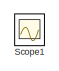
[diagram: root canvas - part 1/2, top left region]
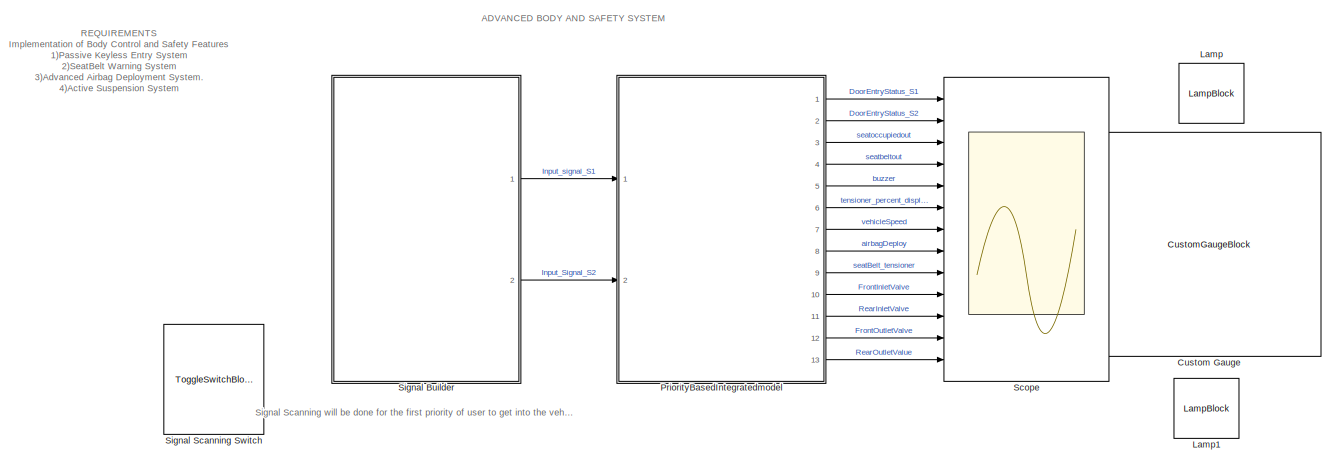
[diagram: root canvas - part 2/2, full width, bottom band]
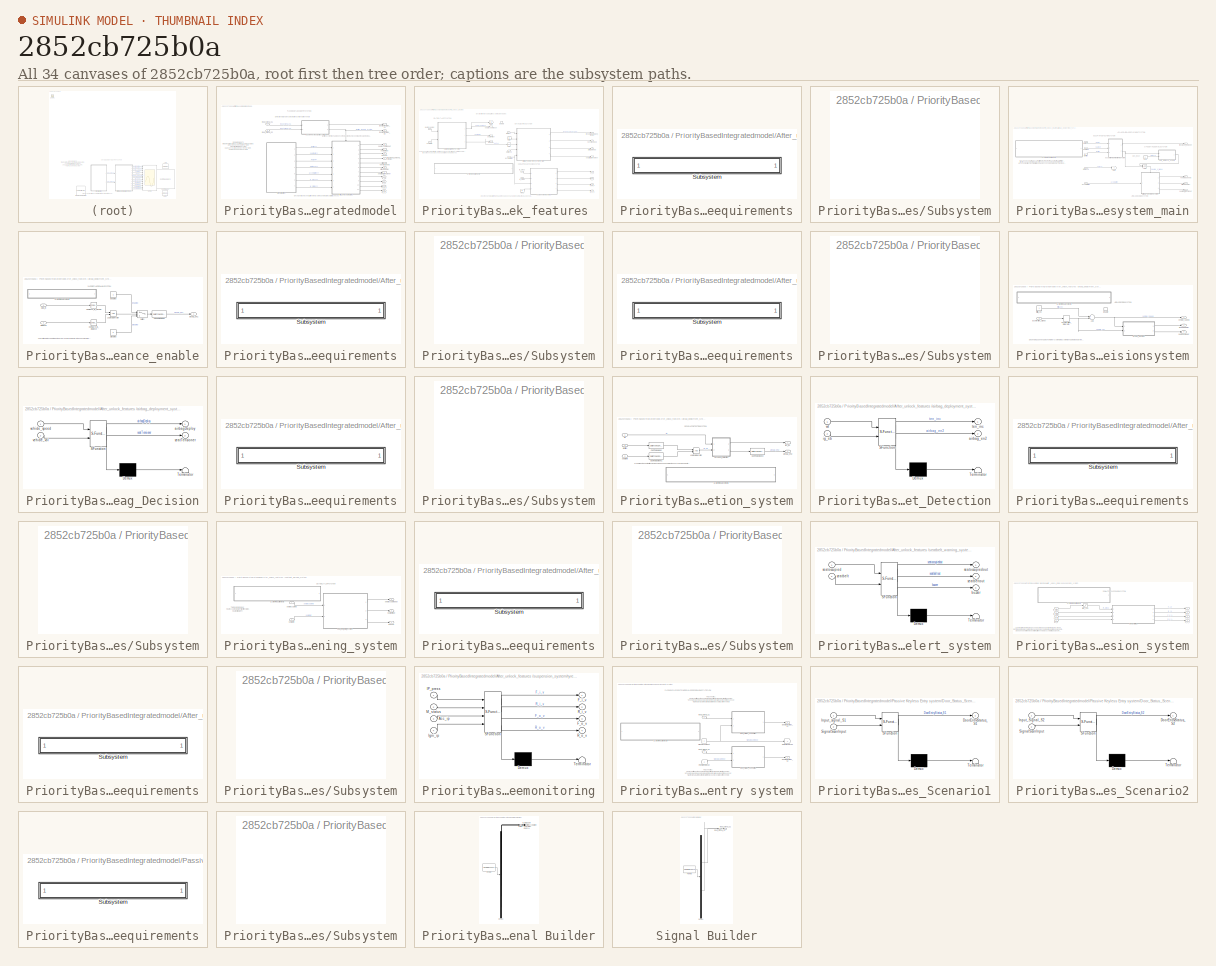
[diagram: thumbnail index - all 34 canvases of the model, root first then tree order]
MODEL slx_2852cb725b0a
KIND model
CONFIG AbsTol = auto
CONFIG EnableMultiTasking = off
CONFIG FixedStep = 0.1
CONFIG MaxStep = auto
CONFIG MinStep = auto
CONFIG RelTol = 1e-3
CONFIG SampleTimeConstraint = Unconstrained
CONFIG Solver = FixedStepDiscrete
CONFIG SolverName = FixedStepDiscrete
CONFIG StartTime = 0.0
CONFIG StopTime = 100
BLOCK [CustomGaugeBlock] Custom Gauge
  BackgroundImage = data:image/svg+xml;base64,PD94bWwgdmVyc2lvbj0iMS4wIiBlbmNvZGluZz0iVVRGLTgiIHN0YW5kYWxvbmU9Im5vIj8+CjwhLS0gR2VuZXJhdG9yOiBBZG9iZSBJbGx1c3RyYXRvciAxOS4yLjEsIFNWRyBFeHBvcnQgUGx1Zy1JbiAuIFNWRyBWZXJzaW9uOiA2LjAwIEJ1aWxkIDApICAtLT4KCjxzdmcKICAgeG1sbnM6ZGM9Imh0dHA6Ly9wdXJsLm9yZy9kYy9lbGVtZW50cy8xLjEvIgogICB4bWxuczpjYz0iaHR0cDovL2NyZWF0aXZlY29tbW9ucy5vcmcvbnMjIgogICB4bWxuczpyZGY9Imh0dHA6Ly93d3cudzMub3JnLz...<+9686ch>
  GaugeArcDefined = true
  GaugeArcRadius = 0.13057749678689773
  GaugeArcRatio = 0.8333333333333
  GaugeArcRotation = 240.5385250290321
  GaugeArcStrokeWidth = 0.03818590063686888
  GaugeArcTransparency = 0
  GaugeMax = 35
  GaugeTickColor = #faf5c8
  GaugeTrackHeight = 0.1
  GaugeTrackLeft = 0.35
  GaugeTrackRotation = 0
  GaugeTrackTop = 0.35
  GaugeTrackWidth = 0.3
  IsLinearGauge = false
  LabelPosition = Bottom
  NeedleHeight = 0.1115133381335879
  NeedleImage = data:image/svg+xml;base64,PD94bWwgdmVyc2lvbj0iMS4wIiBlbmNvZGluZz0idXRmLTgiPz4KPCEtLSBHZW5lcmF0b3I6IEFkb2JlIElsbHVzdHJhdG9yIDE5LjIuMSwgU1ZHIEV4cG9ydCBQbHVnLUluIC4gU1ZHIFZlcnNpb246IDYuMDAgQnVpbGQgMCkgIC0tPgo8c3ZnIHZlcnNpb249IjEuMSIgeG1sbnM9Imh0dHA6Ly93d3cudzMub3JnLzIwMDAvc3ZnIiB4bWxuczp4bGluaz0iaHR0cDovL3d3dy53My5vcmcvMTk5OS94bGluayIgeD0iMHB4IiB5PSIwcHgiCgkgdmlld0JveD0iMCAwIDIwMCA1MCIgc3R5bGU9ImVuYW...<+9966ch>
  NeedleInitialRotation = -59.94322499147643
  NeedleWidth = 0.18370999021718049
  NeedleXPos = 0.3848836610088748
  NeedleYPos = 0.4819046056238141
  ScaleColorsJSON = []
  ValueArcColor = #1759b0
  fixedAspectRatio = on
BLOCK [LampBlock] Lamp
  LabelPosition = Bottom
BLOCK [LampBlock] Lamp1
  LabelPosition = Bottom
BLOCK [SubSystem] PriorityBasedIntegratedmodel
  Ports = [2, 13]
  RequestExecContextInheritance = off
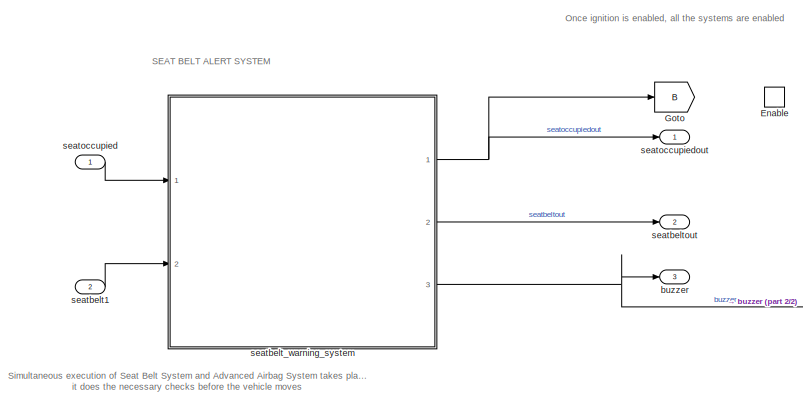
[diagram: PriorityBasedIntegratedmodel/After_unlock_features  - part 1/2, top left region]
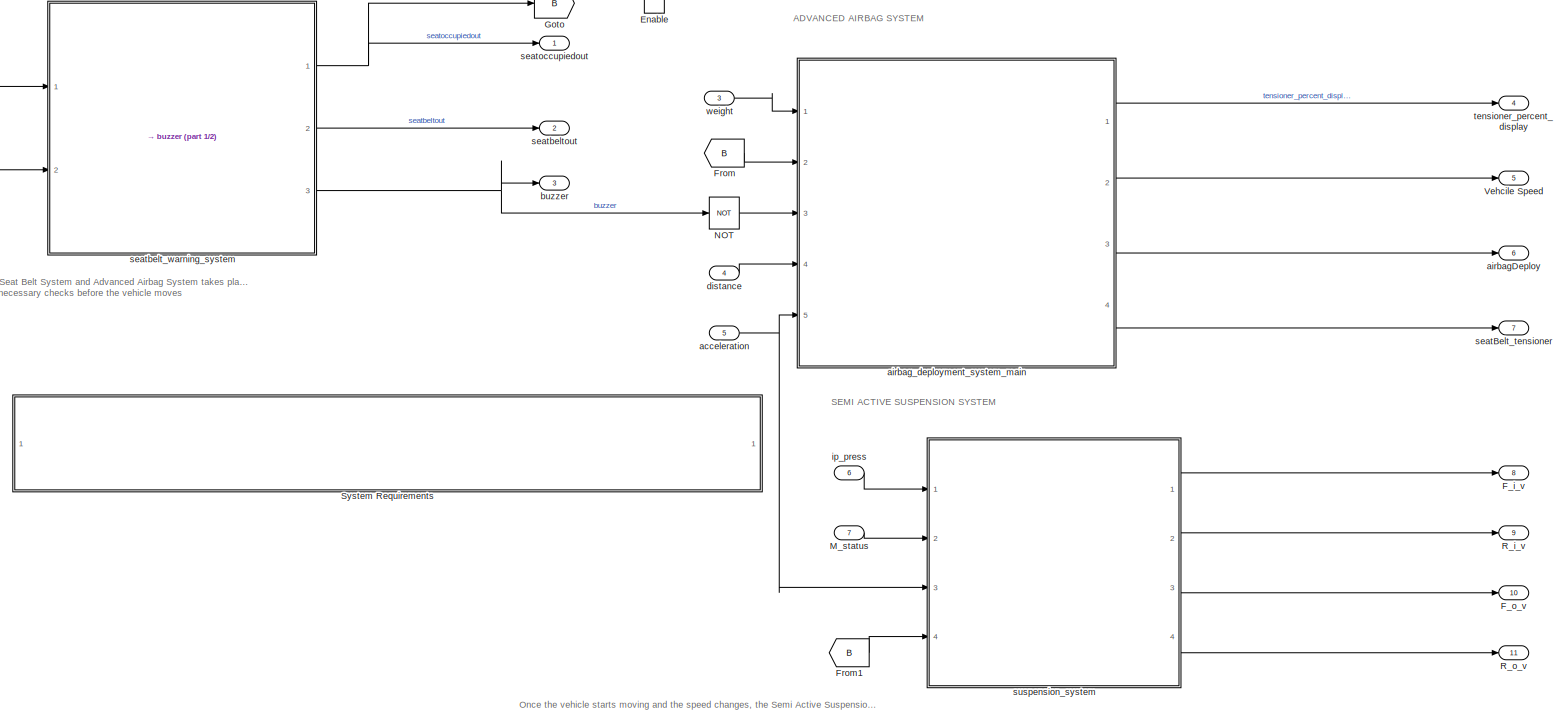
[diagram: PriorityBasedIntegratedmodel/After_unlock_features  - part 2/2, most of the canvas]
BLOCK [SubSystem] PriorityBasedIntegratedmodel/After_unlock_features 
  Ports = [7, 11, 1]
  RequestExecContextInheritance = off
  TreatAsAtomicUnit = on
BLOCK [EnablePort] PriorityBasedIntegratedmodel/After_unlock_features /Enable
  Ports = []
BLOCK [Outport] PriorityBasedIntegratedmodel/After_unlock_features /F_i_v
  IconDisplay = Port number
  Port = 8
BLOCK [Outport] PriorityBasedIntegratedmodel/After_unlock_features /F_o_v
  IconDisplay = Port number
  Port = 10
BLOCK [From] PriorityBasedIntegratedmodel/After_unlock_features /From
  GotoTag = B
BLOCK [From] PriorityBasedIntegratedmodel/After_unlock_features /From1
  GotoTag = B
BLOCK [Goto] PriorityBasedIntegratedmodel/After_unlock_features /Goto
  GotoTag = B
BLOCK [Inport] PriorityBasedIntegratedmodel/After_unlock_features /M_status
  IconDisplay = Port number
  Port = 7
BLOCK [Logic] PriorityBasedIntegratedmodel/After_unlock_features /NOT
  AllPortsSameDT = off
  IconShape = distinctive
  Operator = NOT
  OutDataTypeStr = boolean
  Ports = [1, 1]
BLOCK [Outport] PriorityBasedIntegratedmodel/After_unlock_features /R_i_v
  IconDisplay = Port number
  Port = 9
BLOCK [Outport] PriorityBasedIntegratedmodel/After_unlock_features /R_o_v
  IconDisplay = Port number
  Port = 11
BLOCK [SubSystem] PriorityBasedIntegratedmodel/After_unlock_features /System Requirements
  CopyFcn = rmidispblock('create',gcbh)
  DeleteFcn = rmidispblock('delete',gcbh)
  LoadFcn = rmidispblock('load',gcbh)
  ModelCloseFcn = rmidispblock('close',gcbh)
  MoveFcn = rmidispblock('move',gcbh)
  OpenFcn = rmidispblock('open',gcbh)
  Ports = []
  PostSaveFcn = rmidispblock('open',gcbh)
  PreSaveFcn = rmidispblock('close',gcbh)
  RequestExecContextInheritance = off
BLOCK [SubSystem] PriorityBasedIntegratedmodel/After_unlock_features /System Requirements/Subsystem
  OpenFcn = rmidispblock('openReq',gcbh);
  Ports = []
  RequestExecContextInheritance = off
BLOCK [Outport] PriorityBasedIntegratedmodel/After_unlock_features /Vehcile Speed
  IconDisplay = Port number
  Port = 5
BLOCK [Inport] PriorityBasedIntegratedmodel/After_unlock_features /acceleration
  IconDisplay = Port number
  Port = 5
BLOCK [Outport] PriorityBasedIntegratedmodel/After_unlock_features /airbagDeploy
  IconDisplay = Port number
  Port = 6
BLOCK [SubSystem] PriorityBasedIntegratedmodel/After_unlock_features /airbag_deployment_system_main
  Ports = [5, 4]
  RequestExecContextInheritance = off
BLOCK [Logic] PriorityBasedIntegratedmodel/After_unlock_features /airbag_deployment_system_main/AND
  AllPortsSameDT = off
  IconShape = distinctive
  OutDataTypeStr = boolean
  Ports = [2, 1]
BLOCK [From] PriorityBasedIntegratedmodel/After_unlock_features /airbag_deployment_system_main/From
BLOCK [Goto] PriorityBasedIntegratedmodel/After_unlock_features /airbag_deployment_system_main/Goto
BLOCK [SubSystem] PriorityBasedIntegratedmodel/After_unlock_features /airbag_deployment_system_main/Safe_distance_enable
  Ports = [2, 1]
  RequestExecContextInheritance = off
BLOCK [DataTypeConversion] PriorityBasedIntegratedmodel/After_unlock_features /airbag_deployment_system_main/Safe_distance_enable/Cast To Boolean
  OutDataTypeStr = boolean
  RndMeth = Floor
  SaturateOnIntegerOverflow = off
BLOCK [Reference] PriorityBasedIntegratedmodel/After_unlock_features /airbag_deployment_system_main/Safe_distance_enable/Compare_to_airbag  REF=simulink/Logic and Bit
Operations/Compare
To Constant
  Ports = [1, 1]
  SourceBlock = simulink/Logic and Bit\nOperations/Compare\nTo Constant
  SourceProductBaseCode = SL
  SourceProductName = Simulink
  SourceType = Compare To Constant
BLOCK [Reference] PriorityBasedIntegratedmodel/After_unlock_features /airbag_deployment_system_main/Safe_distance_enable/Compare_to_distance  REF=simulink/Logic and Bit
Operations/Compare
To Constant
  Ports = [1, 1]
  SourceBlock = simulink/Logic and Bit\nOperations/Compare\nTo Constant
  SourceProductBaseCode = SL
  SourceProductName = Simulink
  SourceType = Compare To Constant
BLOCK [Constant] PriorityBasedIntegratedmodel/After_unlock_features /airbag_deployment_system_main/Safe_distance_enable/Disabled
  Value = 0
BLOCK [Constant] PriorityBasedIntegratedmodel/After_unlock_features /airbag_deployment_system_main/Safe_distance_enable/Enabled
BLOCK [Logic] PriorityBasedIntegratedmodel/After_unlock_features /airbag_deployment_system_main/Safe_distance_enable/Logical Operator
  AllPortsSameDT = off
  OutDataTypeStr = boolean
  Ports = [2, 1]
BLOCK [Inport] PriorityBasedIntegratedmodel/After_unlock_features /airbag_deployment_system_main/Safe_distance_enable/ODS_in
  IconDisplay = Port number
BLOCK [Switch] PriorityBasedIntegratedmodel/After_unlock_features /airbag_deployment_system_main/Safe_distance_enable/Switch
  Criteria = u2 ~= 0
  InputSameDT = off
  SaturateOnIntegerOverflow = off
BLOCK [SubSystem] PriorityBasedIntegratedmodel/After_unlock_features /airbag_deployment_system_main/Safe_distance_enable/System Requirements
  CopyFcn = rmidispblock('create',gcbh)
  DeleteFcn = rmidispblock('delete',gcbh)
  LoadFcn = rmidispblock('load',gcbh)
  ModelCloseFcn = rmidispblock('close',gcbh)
  MoveFcn = rmidispblock('move',gcbh)
  OpenFcn = rmidispblock('open',gcbh)
  Ports = []
  PostSaveFcn = rmidispblock('open',gcbh)
  PreSaveFcn = rmidispblock('close',gcbh)
  RequestExecContextInheritance = off
BLOCK [SubSystem] PriorityBasedIntegratedmodel/After_unlock_features /airbag_deployment_system_main/Safe_distance_enable/System Requirements/Subsystem
  OpenFcn = rmidispblock('openReq',gcbh);
  Ports = []
  RequestExecContextInheritance = off
BLOCK [Outport] PriorityBasedIntegratedmodel/After_unlock_features /airbag_deployment_system_main/Safe_distance_enable/airbag_en1
  IconDisplay = Port number
  OutDataTypeStr = boolean
BLOCK [Inport] PriorityBasedIntegratedmodel/After_unlock_features /airbag_deployment_system_main/Safe_distance_enable/distance
  IconDisplay = Port number
  Port = 2
BLOCK [SubSystem] PriorityBasedIntegratedmodel/After_unlock_features /airbag_deployment_system_main/System Requirements
  CopyFcn = rmidispblock('create',gcbh)
  DeleteFcn = rmidispblock('delete',gcbh)
  LoadFcn = rmidispblock('load',gcbh)
  ModelCloseFcn = rmidispblock('close',gcbh)
  MoveFcn = rmidispblock('move',gcbh)
  OpenFcn = rmidispblock('open',gcbh)
  Ports = []
  PostSaveFcn = rmidispblock('open',gcbh)
  PreSaveFcn = rmidispblock('close',gcbh)
  RequestExecContextInheritance = off
BLOCK [SubSystem] PriorityBasedIntegratedmodel/After_unlock_features /airbag_deployment_system_main/System Requirements/Subsystem
  OpenFcn = rmidispblock('openReq',gcbh);
  Ports = []
  RequestExecContextInheritance = off
BLOCK [Inport] PriorityBasedIntegratedmodel/After_unlock_features /airbag_deployment_system_main/acceleration
  IconDisplay = Port number
  Port = 5
BLOCK [SubSystem] PriorityBasedIntegratedmodel/After_unlock_features /airbag_deployment_system_main/airbag_decisionsystem
  Ports = [1, 3, 1]
  RequestExecContextInheritance = off
BLOCK [Sum] PriorityBasedIntegratedmodel/After_unlock_features /airbag_deployment_system_main/airbag_decisionsystem/Add
  InputSameDT = off
  OutDataTypeStr = Inherit: Inherit via internal rule
  Ports = [2, 1]
  SaturateOnIntegerOverflow = off
BLOCK [SubSystem] PriorityBasedIntegratedmodel/After_unlock_features /airbag_deployment_system_main/airbag_decisionsystem/Airbag_Decision
  ErrorFcn = Stateflow.Translate.translate
  PermitHierarchicalResolution = ExplicitOnly
  Ports = [2, 2]
  RequestExecContextInheritance = off
  SFBlockType = Chart
  TreatAsAtomicUnit = on
BLOCK [Demux] PriorityBasedIntegratedmodel/After_unlock_features /airbag_deployment_system_main/airbag_decisionsystem/Airbag_Decision/ Demux 
  DisplayOption = bar
  Outputs = 1
  Ports = [1, 1]
BLOCK [S-Function] PriorityBasedIntegratedmodel/After_unlock_features /airbag_deployment_system_main/airbag_decisionsystem/Airbag_Decision/ SFunction 
  EnableBusSupport = on
  FunctionName = sf_sfun
  PortCounts = [2 3]
  Ports = [2, 3]
  SFcnIsStateOwnerBlock = off
  SFunctionDeploymentMode = off
  Tag = Stateflow S-Function 1
BLOCK [Terminator] PriorityBasedIntegratedmodel/After_unlock_features /airbag_deployment_system_main/airbag_decisionsystem/Airbag_Decision/ Terminator 
BLOCK [Outport] PriorityBasedIntegratedmodel/After_unlock_features /airbag_deployment_system_main/airbag_decisionsystem/Airbag_Decision/airbagDeploy
  IconDisplay = Port number
BLOCK [Outport] PriorityBasedIntegratedmodel/After_unlock_features /airbag_deployment_system_main/airbag_decisionsystem/Airbag_Decision/seatTensioner
  IconDisplay = Port number
  Port = 2
BLOCK [Inport] PriorityBasedIntegratedmodel/After_unlock_features /airbag_deployment_system_main/airbag_decisionsystem/Airbag_Decision/vehicle_speed
  IconDisplay = Port number
BLOCK [Inport] PriorityBasedIntegratedmodel/After_unlock_features /airbag_deployment_system_main/airbag_decisionsystem/Airbag_Decision/vehicle_vol
  IconDisplay = Port number
  Port = 2
BLOCK [EnablePort] PriorityBasedIntegratedmodel/After_unlock_features /airbag_deployment_system_main/airbag_decisionsystem/Enable
  Ports = []
BLOCK [SubSystem] PriorityBasedIntegratedmodel/After_unlock_features /airbag_deployment_system_main/airbag_decisionsystem/System Requirements
  CopyFcn = rmidispblock('create',gcbh)
  DeleteFcn = rmidispblock('delete',gcbh)
  LoadFcn = rmidispblock('load',gcbh)
  ModelCloseFcn = rmidispblock('close',gcbh)
  MoveFcn = rmidispblock('move',gcbh)
  OpenFcn = rmidispblock('open',gcbh)
  Ports = []
  PostSaveFcn = rmidispblock('open',gcbh)
  PreSaveFcn = rmidispblock('close',gcbh)
  RequestExecContextInheritance = off
BLOCK [SubSystem] PriorityBasedIntegratedmodel/After_unlock_features /airbag_deployment_system_main/airbag_decisionsystem/System Requirements/Subsystem
  OpenFcn = rmidispblock('openReq',gcbh);
  Ports = []
  RequestExecContextInheritance = off
BLOCK [DiscreteIntegrator] PriorityBasedIntegratedmodel/After_unlock_features /airbag_deployment_system_main/airbag_decisionsystem/acceleration_integrator
  ICPrevOutput = DiscIntNeverNeededParam
  ICPrevScaledInput = DiscIntNeverNeededParam
  InitialConditionSetting = Auto
  Ports = [1, 1]
  SampleTime = -1
BLOCK [Inport] PriorityBasedIntegratedmodel/After_unlock_features /airbag_deployment_system_main/airbag_decisionsystem/accelertion_signal
  IconDisplay = Port number
BLOCK [Outport] PriorityBasedIntegratedmodel/After_unlock_features /airbag_deployment_system_main/airbag_decisionsystem/airbagdeploy
  IconDisplay = Port number
  Port = 2
BLOCK [Constant] PriorityBasedIntegratedmodel/After_unlock_features /airbag_deployment_system_main/airbag_decisionsystem/initial_vol
BLOCK [Outport] PriorityBasedIntegratedmodel/After_unlock_features /airbag_deployment_system_main/airbag_decisionsystem/seatTensioner
  IconDisplay = Port number
  Port = 3
BLOCK [Outport] PriorityBasedIntegratedmodel/After_unlock_features /airbag_deployment_system_main/airbag_decisionsystem/vehicle_speed
  IconDisplay = Port number
BLOCK [Outport] PriorityBasedIntegratedmodel/After_unlock_features /airbag_deployment_system_main/airbagdeploy
  IconDisplay = Port number
  Port = 3
BLOCK [Inport] PriorityBasedIntegratedmodel/After_unlock_features /airbag_deployment_system_main/distance
  IconDisplay = Port number
  Port = 4
BLOCK [Inport] PriorityBasedIntegratedmodel/After_unlock_features /airbag_deployment_system_main/ignition
  IconDisplay = Port number
  Port = 2
BLOCK [SubSystem] PriorityBasedIntegratedmodel/After_unlock_features /airbag_deployment_system_main/occuption_detection_system
  Ports = [3, 2]
  RequestExecContextInheritance = off
BLOCK [DataTypeConversion] PriorityBasedIntegratedmodel/After_unlock_features /airbag_deployment_system_main/occuption_detection_system/Cast To Boolean
  OutDataTypeStr = boolean
  RndMeth = Floor
  SaturateOnIntegerOverflow = off
BLOCK [DataTypeConversion] PriorityBasedIntegratedmodel/After_unlock_features /airbag_deployment_system_main/occuption_detection_system/Cast To Boolean1
  OutDataTypeStr = boolean
  RndMeth = Floor
  SaturateOnIntegerOverflow = off
BLOCK [DataTypeConversion] PriorityBasedIntegratedmodel/After_unlock_features /airbag_deployment_system_main/occuption_detection_system/Cast To Boolean2
  OutDataTypeStr = boolean
  RndMeth = Floor
  SaturateOnIntegerOverflow = off
BLOCK [Logic] PriorityBasedIntegratedmodel/After_unlock_features /airbag_deployment_system_main/occuption_detection_system/Logical Operator
  AllPortsSameDT = off
  OutDataTypeStr = boolean
  Ports = [2, 1]
BLOCK [SubSystem] PriorityBasedIntegratedmodel/After_unlock_features /airbag_deployment_system_main/occuption_detection_system/Occupant_Detection
  ErrorFcn = Stateflow.Translate.translate
  PermitHierarchicalResolution = ExplicitOnly
  Ports = [2, 2]
  RequestExecContextInheritance = off
  SFBlockType = Chart
  TreatAsAtomicUnit = on
BLOCK [Demux] PriorityBasedIntegratedmodel/After_unlock_features /airbag_deployment_system_main/occuption_detection_system/Occupant_Detection/ Demux 
  DisplayOption = bar
  Outputs = 1
  Ports = [1, 1]
BLOCK [S-Function] PriorityBasedIntegratedmodel/After_unlock_features /airbag_deployment_system_main/occuption_detection_system/Occupant_Detection/ SFunction 
  EnableBusSupport = on
  FunctionName = sf_sfun
  PortCounts = [2 3]
  Ports = [2, 3]
  SFcnIsStateOwnerBlock = off
  SFunctionDeploymentMode = off
  Tag = Stateflow S-Function 2
BLOCK [Terminator] PriorityBasedIntegratedmodel/After_unlock_features /airbag_deployment_system_main/occuption_detection_system/Occupant_Detection/ Terminator 
BLOCK [Outport] PriorityBasedIntegratedmodel/After_unlock_features /airbag_deployment_system_main/occuption_detection_system/Occupant_Detection/airbag_en2
  IconDisplay = Port number
  Port = 2
BLOCK [Inport] PriorityBasedIntegratedmodel/After_unlock_features /airbag_deployment_system_main/occuption_detection_system/Occupant_Detection/ig_sb
  IconDisplay = Port number
  Port = 2
BLOCK [Outport] PriorityBasedIntegratedmodel/After_unlock_features /airbag_deployment_system_main/occuption_detection_system/Occupant_Detection/ten_inc
  IconDisplay = Port number
BLOCK [Inport] PriorityBasedIntegratedmodel/After_unlock_features /airbag_deployment_system_main/occuption_detection_system/Occupant_Detection/wt
  IconDisplay = Port number
BLOCK [SubSystem] PriorityBasedIntegratedmodel/After_unlock_features /airbag_deployment_system_main/occuption_detection_system/System Requirements
  CopyFcn = rmidispblock('create',gcbh)
  DeleteFcn = rmidispblock('delete',gcbh)
  LoadFcn = rmidispblock('load',gcbh)
  ModelCloseFcn = rmidispblock('close',gcbh)
  MoveFcn = rmidispblock('move',gcbh)
  OpenFcn = rmidispblock('open',gcbh)
  Ports = []
  PostSaveFcn = rmidispblock('open',gcbh)
  PreSaveFcn = rmidispblock('close',gcbh)
  RequestExecContextInheritance = off
BLOCK [SubSystem] PriorityBasedIntegratedmodel/After_unlock_features /airbag_deployment_system_main/occuption_detection_system/System Requirements/Subsystem
  OpenFcn = rmidispblock('openReq',gcbh);
  Ports = []
  RequestExecContextInheritance = off
BLOCK [Outport] PriorityBasedIntegratedmodel/After_unlock_features /airbag_deployment_system_main/occuption_detection_system/airbag_en2
  IconDisplay = Port number
  Port = 2
BLOCK [Inport] PriorityBasedIntegratedmodel/After_unlock_features /airbag_deployment_system_main/occuption_detection_system/ignition
  IconDisplay = Port number
  Port = 3
BLOCK [Inport] PriorityBasedIntegratedmodel/After_unlock_features /airbag_deployment_system_main/occuption_detection_system/seatbelt
  IconDisplay = Port number
  Port = 2
BLOCK [Outport] PriorityBasedIntegratedmodel/After_unlock_features /airbag_deployment_system_main/occuption_detection_system/ten_inc
  IconDisplay = Port number
BLOCK [Inport] PriorityBasedIntegratedmodel/After_unlock_features /airbag_deployment_system_main/occuption_detection_system/wt
  IconDisplay = Port number
BLOCK [Inport] PriorityBasedIntegratedmodel/After_unlock_features /airbag_deployment_system_main/seatbelt
  IconDisplay = Port number
  Port = 3
BLOCK [Outport] PriorityBasedIntegratedmodel/After_unlock_features /airbag_deployment_system_main/seatbelt_tensioner
  IconDisplay = Port number
  Port = 4
BLOCK [Outport] PriorityBasedIntegratedmodel/After_unlock_features /airbag_deployment_system_main/tensioner_percent
  IconDisplay = Port number
BLOCK [Outport] PriorityBasedIntegratedmodel/After_unlock_features /airbag_deployment_system_main/vehicle_speed
  IconDisplay = Port number
  Port = 2
BLOCK [Inport] PriorityBasedIntegratedmodel/After_unlock_features /airbag_deployment_system_main/weight
  IconDisplay = Port number
BLOCK [Outport] PriorityBasedIntegratedmodel/After_unlock_features /buzzer
  IconDisplay = Port number
  Port = 3
BLOCK [Inport] PriorityBasedIntegratedmodel/After_unlock_features /distance
  IconDisplay = Port number
  Port = 4
BLOCK [Inport] PriorityBasedIntegratedmodel/After_unlock_features /ip_press
  IconDisplay = Port number
  Port = 6
BLOCK [Outport] PriorityBasedIntegratedmodel/After_unlock_features /seatBelt_tensioner
  IconDisplay = Port number
  Port = 7
BLOCK [Inport] PriorityBasedIntegratedmodel/After_unlock_features /seatbelt1
  IconDisplay = Port number
  Port = 2
BLOCK [SubSystem] PriorityBasedIntegratedmodel/After_unlock_features /seatbelt_warning_system
  Ports = [2, 3]
  RequestExecContextInheritance = off
BLOCK [SubSystem] PriorityBasedIntegratedmodel/After_unlock_features /seatbelt_warning_system/System Requirements
  CopyFcn = rmidispblock('create',gcbh)
  DeleteFcn = rmidispblock('delete',gcbh)
  LoadFcn = rmidispblock('load',gcbh)
  ModelCloseFcn = rmidispblock('close',gcbh)
  MoveFcn = rmidispblock('move',gcbh)
  OpenFcn = rmidispblock('open',gcbh)
  Ports = []
  PostSaveFcn = rmidispblock('open',gcbh)
  PreSaveFcn = rmidispblock('close',gcbh)
  RequestExecContextInheritance = off
BLOCK [SubSystem] PriorityBasedIntegratedmodel/After_unlock_features /seatbelt_warning_system/System Requirements/Subsystem
  OpenFcn = rmidispblock('openReq',gcbh);
  Ports = []
  RequestExecContextInheritance = off
BLOCK [Outport] PriorityBasedIntegratedmodel/After_unlock_features /seatbelt_warning_system/buzzer
  IconDisplay = Port number
  Port = 3
BLOCK [SubSystem] PriorityBasedIntegratedmodel/After_unlock_features /seatbelt_warning_system/seat_belt_alert_system
  ErrorFcn = Stateflow.Translate.translate
  PermitHierarchicalResolution = ExplicitOnly
  Ports = [2, 3]
  RequestExecContextInheritance = off
  SFBlockType = Chart
  TreatAsAtomicUnit = on
BLOCK [Demux] PriorityBasedIntegratedmodel/After_unlock_features /seatbelt_warning_system/seat_belt_alert_system/ Demux 
  DisplayOption = bar
  Outputs = 1
  Ports = [1, 1]
BLOCK [S-Function] PriorityBasedIntegratedmodel/After_unlock_features /seatbelt_warning_system/seat_belt_alert_system/ SFunction 
  EnableBusSupport = on
  FunctionName = sf_sfun
  PortCounts = [2 4]
  Ports = [2, 4]
  SFcnIsStateOwnerBlock = off
  SFunctionDeploymentMode = off
  Tag = Stateflow S-Function 3
BLOCK [Terminator] PriorityBasedIntegratedmodel/After_unlock_features /seatbelt_warning_system/seat_belt_alert_system/ Terminator 
BLOCK [Outport] PriorityBasedIntegratedmodel/After_unlock_features /seatbelt_warning_system/seat_belt_alert_system/buzzer
  IconDisplay = Port number
  Port = 3
BLOCK [Inport] PriorityBasedIntegratedmodel/After_unlock_features /seatbelt_warning_system/seat_belt_alert_system/seatbelt
  IconDisplay = Port number
  Port = 2
BLOCK [Outport] PriorityBasedIntegratedmodel/After_unlock_features /seatbelt_warning_system/seat_belt_alert_system/seatbeltout
  IconDisplay = Port number
  Port = 2
BLOCK [Inport] PriorityBasedIntegratedmodel/After_unlock_features /seatbelt_warning_system/seat_belt_alert_system/seatoccupied
  IconDisplay = Port number
BLOCK [Outport] PriorityBasedIntegratedmodel/After_unlock_features /seatbelt_warning_system/seat_belt_alert_system/seatoccupiedout
  IconDisplay = Port number
BLOCK [Inport] PriorityBasedIntegratedmodel/After_unlock_features /seatbelt_warning_system/seatbelt
  IconDisplay = Port number
  Port = 2
BLOCK [Outport] PriorityBasedIntegratedmodel/After_unlock_features /seatbelt_warning_system/seatbeltout
  IconDisplay = Port number
  Port = 2
BLOCK [Inport] PriorityBasedIntegratedmodel/After_unlock_features /seatbelt_warning_system/seatoccupied
  IconDisplay = Port number
BLOCK [Outport] PriorityBasedIntegratedmodel/After_unlock_features /seatbelt_warning_system/seatoccupiedout
  IconDisplay = Port number
BLOCK [Outport] PriorityBasedIntegratedmodel/After_unlock_features /seatbeltout
  IconDisplay = Port number
  Port = 2
BLOCK [Inport] PriorityBasedIntegratedmodel/After_unlock_features /seatoccupied
  IconDisplay = Port number
BLOCK [Outport] PriorityBasedIntegratedmodel/After_unlock_features /seatoccupiedout
  IconDisplay = Port number
BLOCK [SubSystem] PriorityBasedIntegratedmodel/After_unlock_features /suspension_system
  Ports = [4, 4]
  RequestExecContextInheritance = off
BLOCK [Inport] PriorityBasedIntegratedmodel/After_unlock_features /suspension_system/Acc_ip
  IconDisplay = Port number
  Port = 3
BLOCK [Outport] PriorityBasedIntegratedmodel/After_unlock_features /suspension_system/F_i_v
  IconDisplay = Port number
BLOCK [Outport] PriorityBasedIntegratedmodel/After_unlock_features /suspension_system/F_o_v
  IconDisplay = Port number
  Port = 3
BLOCK [Inport] PriorityBasedIntegratedmodel/After_unlock_features /suspension_system/IP_press
  IconDisplay = Port number
BLOCK [Inport] PriorityBasedIntegratedmodel/After_unlock_features /suspension_system/Igni_IP
  IconDisplay = Port number
  Port = 4
BLOCK [Inport] PriorityBasedIntegratedmodel/After_unlock_features /suspension_system/M_status
  IconDisplay = Port number
  Port = 2
BLOCK [Outport] PriorityBasedIntegratedmodel/After_unlock_features /suspension_system/R_i_v
  IconDisplay = Port number
  Port = 2
BLOCK [Outport] PriorityBasedIntegratedmodel/After_unlock_features /suspension_system/R_o_v
  IconDisplay = Port number
  Port = 4
BLOCK [SubSystem] PriorityBasedIntegratedmodel/After_unlock_features /suspension_system/System Requirements
  CopyFcn = rmidispblock('create',gcbh)
  DeleteFcn = rmidispblock('delete',gcbh)
  LoadFcn = rmidispblock('load',gcbh)
  ModelCloseFcn = rmidispblock('close',gcbh)
  MoveFcn = rmidispblock('move',gcbh)
  OpenFcn = rmidispblock('open',gcbh)
  Ports = []
  PostSaveFcn = rmidispblock('open',gcbh)
  PreSaveFcn = rmidispblock('close',gcbh)
  RequestExecContextInheritance = off
BLOCK [SubSystem] PriorityBasedIntegratedmodel/After_unlock_features /suspension_system/System Requirements/Subsystem
  OpenFcn = rmidispblock('openReq',gcbh);
  Ports = []
  RequestExecContextInheritance = off
BLOCK [Saturate] PriorityBasedIntegratedmodel/After_unlock_features /suspension_system/lim0_100
  AttributesFormatString = %<LowerLimit>=0\n%<UpperLimit>=120
  InputPortMap = u0
  LowerLimit = 0
  Ports = [1, 1]
  UpperLimit = 120
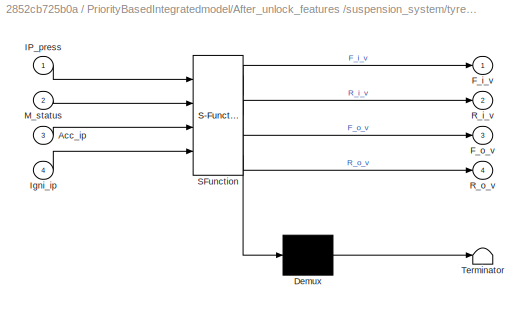
BLOCK [SubSystem] PriorityBasedIntegratedmodel/After_unlock_features /suspension_system/tyremonitoring
  ErrorFcn = Stateflow.Translate.translate
  PermitHierarchicalResolution = ExplicitOnly
  Ports = [4, 4]
  RequestExecContextInheritance = off
  SFBlockType = Chart
  TreatAsAtomicUnit = on
BLOCK [Demux] PriorityBasedIntegratedmodel/After_unlock_features /suspension_system/tyremonitoring/ Demux 
  DisplayOption = bar
  Outputs = 1
  Ports = [1, 1]
BLOCK [S-Function] PriorityBasedIntegratedmodel/After_unlock_features /suspension_system/tyremonitoring/ SFunction 
  EnableBusSupport = on
  FunctionName = sf_sfun
  PortCounts = [4 5]
  Ports = [4, 5]
  SFcnIsStateOwnerBlock = off
  SFunctionDeploymentMode = off
  Tag = Stateflow S-Function 6
BLOCK [Terminator] PriorityBasedIntegratedmodel/After_unlock_features /suspension_system/tyremonitoring/ Terminator 
BLOCK [Inport] PriorityBasedIntegratedmodel/After_unlock_features /suspension_system/tyremonitoring/Acc_ip
  IconDisplay = Port number
  Port = 3
BLOCK [Outport] PriorityBasedIntegratedmodel/After_unlock_features /suspension_system/tyremonitoring/F_i_v
  IconDisplay = Port number
BLOCK [Outport] PriorityBasedIntegratedmodel/After_unlock_features /suspension_system/tyremonitoring/F_o_v
  IconDisplay = Port number
  Port = 3
BLOCK [Inport] PriorityBasedIntegratedmodel/After_unlock_features /suspension_system/tyremonitoring/IP_press
  IconDisplay = Port number
BLOCK [Inport] PriorityBasedIntegratedmodel/After_unlock_features /suspension_system/tyremonitoring/Igni_ip
  IconDisplay = Port number
  Port = 4
BLOCK [Inport] PriorityBasedIntegratedmodel/After_unlock_features /suspension_system/tyremonitoring/M_status
  IconDisplay = Port number
  Port = 2
BLOCK [Outport] PriorityBasedIntegratedmodel/After_unlock_features /suspension_system/tyremonitoring/R_i_v
  IconDisplay = Port number
  Port = 2
BLOCK [Outport] PriorityBasedIntegratedmodel/After_unlock_features /suspension_system/tyremonitoring/R_o_v
  IconDisplay = Port number
  Port = 4
BLOCK [Outport] PriorityBasedIntegratedmodel/After_unlock_features /tensioner_percent_display
  IconDisplay = Port number
  Port = 4
BLOCK [Inport] PriorityBasedIntegratedmodel/After_unlock_features /weight
  IconDisplay = Port number
  Port = 3
BLOCK [Outport] PriorityBasedIntegratedmodel/DoorEntryStatus_S1
  IconDisplay = Port number
BLOCK [Outport] PriorityBasedIntegratedmodel/DoorEntryStatus_S2
  IconDisplay = Port number
  Port = 2
BLOCK [Outport] PriorityBasedIntegratedmodel/F_i_v
  IconDisplay = Port number
  Port = 10
BLOCK [Outport] PriorityBasedIntegratedmodel/F_o_v
  IconDisplay = Port number
  Port = 12
BLOCK [Inport] PriorityBasedIntegratedmodel/Input_Signal_S2
  IconDisplay = Port number
  Port = 2
BLOCK [Inport] PriorityBasedIntegratedmodel/Input_signal_S1
  IconDisplay = Port number
BLOCK [SubSystem] PriorityBasedIntegratedmodel/Passive Keyless Entry system
  Ports = [2, 2]
  RequestExecContextInheritance = off
BLOCK [Outport] PriorityBasedIntegratedmodel/Passive Keyless Entry system/DoorEntryStatus_S1
  IconDisplay = Port number
BLOCK [Outport] PriorityBasedIntegratedmodel/Passive Keyless Entry system/DoorEntryStatus_S2
  IconDisplay = Port number
  Port = 2
BLOCK [SubSystem] PriorityBasedIntegratedmodel/Passive Keyless Entry system/Door_Status_Scenario1
  ErrorFcn = Stateflow.Translate.translate
  PermitHierarchicalResolution = ExplicitOnly
  Ports = [2, 1]
  RequestExecContextInheritance = off
  SFBlockType = Chart
  TreatAsAtomicUnit = on
BLOCK [Demux] PriorityBasedIntegratedmodel/Passive Keyless Entry system/Door_Status_Scenario1/ Demux 
  DisplayOption = bar
  Outputs = 1
  Ports = [1, 1]
BLOCK [S-Function] PriorityBasedIntegratedmodel/Passive Keyless Entry system/Door_Status_Scenario1/ SFunction 
  EnableBusSupport = on
  FunctionName = sf_sfun
  PortCounts = [2 2]
  Ports = [2, 2]
  SFcnIsStateOwnerBlock = off
  SFunctionDeploymentMode = off
  Tag = Stateflow S-Function 4
BLOCK [Terminator] PriorityBasedIntegratedmodel/Passive Keyless Entry system/Door_Status_Scenario1/ Terminator 
BLOCK [Outport] PriorityBasedIntegratedmodel/Passive Keyless Entry system/Door_Status_Scenario1/DoorEntryStatus_S1
  IconDisplay = Port number
BLOCK [Inport] PriorityBasedIntegratedmodel/Passive Keyless Entry system/Door_Status_Scenario1/Input_signal_S1
  IconDisplay = Port number
BLOCK [Inport] PriorityBasedIntegratedmodel/Passive Keyless Entry system/Door_Status_Scenario1/SignalScanInput
  IconDisplay = Port number
  Port = 2
BLOCK [SubSystem] PriorityBasedIntegratedmodel/Passive Keyless Entry system/Door_Status_Scenario2
  ErrorFcn = Stateflow.Translate.translate
  PermitHierarchicalResolution = ExplicitOnly
  Ports = [2, 1]
  RequestExecContextInheritance = off
  SFBlockType = Chart
  TreatAsAtomicUnit = on
BLOCK [Demux] PriorityBasedIntegratedmodel/Passive Keyless Entry system/Door_Status_Scenario2/ Demux 
  DisplayOption = bar
  Outputs = 1
  Ports = [1, 1]
BLOCK [S-Function] PriorityBasedIntegratedmodel/Passive Keyless Entry system/Door_Status_Scenario2/ SFunction 
  EnableBusSupport = on
  FunctionName = sf_sfun
  PortCounts = [2 2]
  Ports = [2, 2]
  SFcnIsStateOwnerBlock = off
  SFunctionDeploymentMode = off
  Tag = Stateflow S-Function 5
BLOCK [Terminator] PriorityBasedIntegratedmodel/Passive Keyless Entry system/Door_Status_Scenario2/ Terminator 
BLOCK [Outport] PriorityBasedIntegratedmodel/Passive Keyless Entry system/Door_Status_Scenario2/DoorEntryStatus_S2
  IconDisplay = Port number
BLOCK [Inport] PriorityBasedIntegratedmodel/Passive Keyless Entry system/Door_Status_Scenario2/Input_Signal_S2
  IconDisplay = Port number
BLOCK [Inport] PriorityBasedIntegratedmodel/Passive Keyless Entry system/Door_Status_Scenario2/SignalScanInput
  IconDisplay = Port number
  Port = 2
BLOCK [From] PriorityBasedIntegratedmodel/Passive Keyless Entry system/FromSignalScan
BLOCK [Goto] PriorityBasedIntegratedmodel/Passive Keyless Entry system/GotoSignalScan
BLOCK [Inport] PriorityBasedIntegratedmodel/Passive Keyless Entry system/Input_Signal_S2
  IconDisplay = Port number
  Port = 2
BLOCK [Inport] PriorityBasedIntegratedmodel/Passive Keyless Entry system/Input_signal_S1
  IconDisplay = Port number
BLOCK [Constant] PriorityBasedIntegratedmodel/Passive Keyless Entry system/SignalScanInput
BLOCK [SubSystem] PriorityBasedIntegratedmodel/Passive Keyless Entry system/System Requirements
  CopyFcn = rmidispblock('create',gcbh)
  DeleteFcn = rmidispblock('delete',gcbh)
  LoadFcn = rmidispblock('load',gcbh)
  ModelCloseFcn = rmidispblock('close',gcbh)
  MoveFcn = rmidispblock('move',gcbh)
  OpenFcn = rmidispblock('open',gcbh)
  Ports = []
  PostSaveFcn = rmidispblock('open',gcbh)
  PreSaveFcn = rmidispblock('close',gcbh)
  RequestExecContextInheritance = off
BLOCK [SubSystem] PriorityBasedIntegratedmodel/Passive Keyless Entry system/System Requirements/Subsystem
  OpenFcn = rmidispblock('openReq',gcbh);
  Ports = []
  RequestExecContextInheritance = off
BLOCK [Outport] PriorityBasedIntegratedmodel/R_i_v
  IconDisplay = Port number
  Port = 11
BLOCK [Outport] PriorityBasedIntegratedmodel/R_o_v
  IconDisplay = Port number
  Port = 13
BLOCK [SubSystem] PriorityBasedIntegratedmodel/Signal Builder
  ClipboardFcn = sigbuilder_block('clipboard');
  CloseFcn = sigbuilder_block('close');
  ContinueFcn = sigbuilder_block('continue');
  CopyFcn = sigbuilder_block('copy');
  DeleteFcn = sigbuilder_block('delete');
  LoadFcn = sigbuilder_block('load');
  MaskHideContents = on
  ModelCloseFcn = sigbuilder_block('modelClose');
  NameChangeFcn = sigbuilder_block('namechange');
  OpenFcn = sigbuilder_block('open',[0 30 1152 561.6 ]);
  PauseFcn = sigbuilder_block('pause');
  Ports = [0, 7]
  PreSaveFcn = sigbuilder_block('preSave');
  RequestExecContextInheritance = off
  StartFcn = sigbuilder_block('start');
  StopFcn = sigbuilder_block('stop');
  Tag = STV Subsys
BLOCK [Demux] PriorityBasedIntegratedmodel/Signal Builder/Demux
  Outputs = 7
  Ports = [1, 7]
  Tag = STV Demux
BLOCK [FromWorkspace] PriorityBasedIntegratedmodel/Signal Builder/FromWs
  SampleTime = 0
  Tag = STV FromWs
  VariableName = tuvar
  ZeroCross = on
BLOCK [Outport] PriorityBasedIntegratedmodel/Signal Builder/M_status
  IconDisplay = Port number
  Port = 7
  Tag = STV Outport
BLOCK [Outport] PriorityBasedIntegratedmodel/Signal Builder/acceleration
  IconDisplay = Port number
  Port = 5
  Tag = STV Outport
BLOCK [Outport] PriorityBasedIntegratedmodel/Signal Builder/distance
  IconDisplay = Port number
  Port = 4
  Tag = STV Outport
BLOCK [Outport] PriorityBasedIntegratedmodel/Signal Builder/ignition
  IconDisplay = Port number
  Tag = STV Outport
BLOCK [Outport] PriorityBasedIntegratedmodel/Signal Builder/ip_pressure
  IconDisplay = Port number
  Port = 6
  Tag = STV Outport
BLOCK [Outport] PriorityBasedIntegratedmodel/Signal Builder/seatbelt1
  IconDisplay = Port number
  Port = 2
  Tag = STV Outport
BLOCK [Outport] PriorityBasedIntegratedmodel/Signal Builder/weight
  IconDisplay = Port number
  Port = 3
  Tag = STV Outport
BLOCK [Outport] PriorityBasedIntegratedmodel/Vehcile Speed
  IconDisplay = Port number
  Port = 7
BLOCK [Outport] PriorityBasedIntegratedmodel/airbagDeploy
  IconDisplay = Port number
  Port = 8
BLOCK [Outport] PriorityBasedIntegratedmodel/buzzer
  IconDisplay = Port number
  Port = 5
BLOCK [Outport] PriorityBasedIntegratedmodel/seatBelt_tensioner
  IconDisplay = Port number
  Port = 9
BLOCK [Outport] PriorityBasedIntegratedmodel/seatbeltout
  IconDisplay = Port number
  Port = 4
BLOCK [Outport] PriorityBasedIntegratedmodel/seatoccupiedout
  IconDisplay = Port number
  Port = 3
BLOCK [Outport] PriorityBasedIntegratedmodel/tensioner_percent_display
  IconDisplay = Port number
  Port = 6
BLOCK [Scope] Scope
  Floating = off
  NumInputPorts = 13
  Ports = [13]
  ScopeSpecificationString = Simulink.scopes.TimeScopeBlockCfg('CurrentConfiguration', extmgr.ConfigurationSet(extmgr.Configuration('Core','General UI',true),extmgr.Configuration('Core','Source UI',true),extmgr.Configuration('Sources','WiredSimulink',true,'DataLoggingVariableName','ScopeData1'),extmgr.Configuration('Visuals','Time Domain',true,'SerializedDisplays',{struct('MinYLimReal','-0.125','MaxYLimReal','1.125','YLabelRe...<+11991ch>
BLOCK [Scope] Scope1
  Floating = off
  IOType = viewer
  NumInputPorts = 1
  Ports = []
  ScopeSpecificationString = Simulink.scopes.TimeScopeBlockCfg('CurrentConfiguration', extmgr.ConfigurationSet(extmgr.Configuration('Core','General UI',true),extmgr.Configuration('Core','Source UI',true),extmgr.Configuration('Sources','WiredSimulink',true,'DataLoggingVariableName','ScopeData1'),extmgr.Configuration('Visuals','Time Domain',true,'SerializedDisplays',{struct('MinYLimReal','-0.125','MaxYLimReal','1.125','YLabelRe...<+2008ch>
BLOCK [SubSystem] Signal Builder
  ClipboardFcn = sigbuilder_block('clipboard');
  CloseFcn = sigbuilder_block('close');
  ContinueFcn = sigbuilder_block('continue');
  CopyFcn = sigbuilder_block('copy');
  DeleteFcn = sigbuilder_block('delete');
  LoadFcn = sigbuilder_block('load');
  MaskHideContents = on
  ModelCloseFcn = sigbuilder_block('modelClose');
  NameChangeFcn = sigbuilder_block('namechange');
  OpenFcn = sigbuilder_block('open',[0 30 1152 561.6 ]);
  PauseFcn = sigbuilder_block('pause');
  Ports = [0, 2]
  PreSaveFcn = sigbuilder_block('preSave');
  RequestExecContextInheritance = off
  StartFcn = sigbuilder_block('start');
  StopFcn = sigbuilder_block('stop');
  Tag = STV Subsys
BLOCK [Demux] Signal Builder/Demux
  Outputs = 2
  Ports = [1, 2]
  Tag = STV Demux
BLOCK [FromWorkspace] Signal Builder/FromWs
  SampleTime = 0
  Tag = STV FromWs
  VariableName = tuvar
  ZeroCross = on
BLOCK [Outport] Signal Builder/Input_signal_S1
  IconDisplay = Port number
  Tag = STV Outport
BLOCK [Outport] Signal Builder/Input_signal_S2
  IconDisplay = Port number
  Port = 2
  Tag = STV Outport
BLOCK [ToggleSwitchBlock] Signal Scanning Switch
  LabelPosition = Bottom
ANNOTATION (root): ADVANCED BODY AND SAFETY SYSTEM
ANNOTATION (root): REQUIREMENTS Implementation of Body Control and Safety Features 1)Passive Keyless Entry System 2)SeatBelt Warning System 3)Advanced Airbag Deployment System. 4)Active Suspension System Required Inputs and the respective outputs are as follows: 1)Inputs: Input signal_s1 Input signal_s2 Ignition Status (on/off) Seatbelt status (on/off) Weight Sensor (kg) Distance(cm) Vehicle acceleration(m/s^2). Pre...<+240ch>
ANNOTATION (root): Signal Scanning will be done for the first priority of user to get into the vehicle
ANNOTATION PriorityBasedIntegratedmodel: REQUIREMENTS Implementation of Body Control and Safety Features 1)Passive Keyless Entry System 2)SeatBelt Warning System 3)Advanced Airbag Deployment System. 4)Active Suspension System Required Inputs and the respective outputs are as follows: 1)Inputs: Input signal_s1 Input signal_s2 Ignition Status (on/off) Seatbelt status (on/off) Weight Sensor (kg) Distance(cm) Vehicle acceleration(m/s^2). Pre...<+240ch>
ANNOTATION PriorityBasedIntegratedmodel: Detection of signal ensures that the user is near the vehicle
ANNOTATION PriorityBasedIntegratedmodel: Ignition System is enabled once the Door gets unlocked i.e. Zero value is displayed
ANNOTATION PriorityBasedIntegratedmodel: Once Door is unlocked, all the other systems and features starts it's checks
ANNOTATION PriorityBasedIntegratedmodel: PASSIVE KEYLESS ENTRY SYSTEM
ANNOTATION PriorityBasedIntegratedmodel/After_unlock_features : ADVANCED AIRBAG SYSTEM
ANNOTATION PriorityBasedIntegratedmodel/After_unlock_features : Once ignition is enabled, all the systems are enabled
ANNOTATION PriorityBasedIntegratedmodel/After_unlock_features : Once the vehicle starts moving and the speed changes, the Semi Active Suspension System starts to take its effect
ANNOTATION PriorityBasedIntegratedmodel/After_unlock_features : SEAT BELT ALERT SYSTEM
ANNOTATION PriorityBasedIntegratedmodel/After_unlock_features : Simultaneous execution of Seat Belt System and Advanced Airbag System takes place as it does the necessary checks before the vehicle moves
ANNOTATION PriorityBasedIntegratedmodel/After_unlock_features : SEMI ACTIVE SUSPENSION SYSTEM
ANNOTATION PriorityBasedIntegratedmodel/After_unlock_features /airbag_deployment_system_main: SAFE DISTANCE ENABLE SYSTEM
ANNOTATION PriorityBasedIntegratedmodel/After_unlock_features /airbag_deployment_system_main: AIRBAG DECISION SYSTEM
ANNOTATION PriorityBasedIntegratedmodel/After_unlock_features /airbag_deployment_system_main: OCCUPANT DETECTION SYSTEM
ANNOTATION PriorityBasedIntegratedmodel/After_unlock_features /airbag_deployment_system_main: ADVANCE AIRBAG DEPLOYMENT SYSTEM
ANNOTATION PriorityBasedIntegratedmodel/After_unlock_features /airbag_deployment_system_main: · The Advanced airbag system first detect whether the seatbelt is set after ignition is ON. · If ignition and Seatbelt are both set then based upon the weight of driver we internally predefined tensioning percent of seatbelt when so that when crash is detected it is activated. · Once seatbelt tensioner is initialized we also check for safer deployment and then this enables steering retraction foll...<+82ch>
ANNOTATION PriorityBasedIntegratedmodel/After_unlock_features /airbag_deployment_system_main: ODS_input
ANNOTATION PriorityBasedIntegratedmodel/After_unlock_features /airbag_deployment_system_main/Safe_distance_enable: SAFE DISTANCE ENABLE SYSTEM
ANNOTATION PriorityBasedIntegratedmodel/After_unlock_features /airbag_deployment_system_main/Safe_distance_enable: Check if the distance between the driver and airbag is more than 20cm and if yes it gives a positive enable for airbag system to deploy
ANNOTATION PriorityBasedIntegratedmodel/After_unlock_features /airbag_deployment_system_main/airbag_decisionsystem: Depending upon enables from other systems this system is enabled to deploy the airbag system depending on the acceleration of vehicle
ANNOTATION PriorityBasedIntegratedmodel/After_unlock_features /airbag_deployment_system_main/airbag_decisionsystem: AIRBAG DECISION SYSTEM
ANNOTATION PriorityBasedIntegratedmodel/After_unlock_features /airbag_deployment_system_main/occuption_detection_system: Predefines the seatbelt tensioning value based on weight sensor only when deatbelt and ignition is set
ANNOTATION PriorityBasedIntegratedmodel/After_unlock_features /airbag_deployment_system_main/occuption_detection_system: OCCUPANT DETECTION SYSTEM
ANNOTATION PriorityBasedIntegratedmodel/After_unlock_features /seatbelt_warning_system: Two Inputs provided: Seatoccupied (ON/OFF)/Ignition status Seatbelt (ON/OFF)
ANNOTATION PriorityBasedIntegratedmodel/After_unlock_features /seatbelt_warning_system: SEAT BELT ALERT SYSTEM
ANNOTATION PriorityBasedIntegratedmodel/After_unlock_features /suspension_system: 1. There are two working modes one is city mode and other is highway mode. 2. In city mode the pressure inside suspension chamber is kept at 50psi and highway mode it is kept at 100psi. 3. Independent of the mode of driving if the vehicle is accelerating quickly the rear suspension is made stiffer and if the vehicle is de-accelerating the frontal suspension is made stiffer.
ANNOTATION PriorityBasedIntegratedmodel/After_unlock_features /suspension_system: SEMI ACTIVE SUSPENSION SYSTEM
ANNOTATION PriorityBasedIntegratedmodel/Passive Keyless Entry system: %% Scenario 1: % This chart takes the user value when it is moving away from the source. % The signal Vehicle and Door depicts the signal range given to the sensor. % Both signals are required to state the lock status of the vehicle
ANNOTATION PriorityBasedIntegratedmodel/Passive Keyless Entry system: %% Scenario 2: % This chart takes the user value when it is moving away from the source. % The signal Vehicle and Door depicts the signal range given to the sensor. % Both signals are required to state the lock unlock status of the vehicle
ANNOTATION PriorityBasedIntegratedmodel/Passive Keyless Entry system: PASSIVE KEYLESS ENTRY MODEL BASED DESIGN USING STATEFLOW
LINE PriorityBasedIntegratedmodel/After_unlock_features /From1:1 -> PriorityBasedIntegratedmodel/After_unlock_features /suspension_system:4
LINE PriorityBasedIntegratedmodel/After_unlock_features /From:1 -> PriorityBasedIntegratedmodel/After_unlock_features /airbag_deployment_system_main:2
LINE PriorityBasedIntegratedmodel/After_unlock_features /M_status:1 -> PriorityBasedIntegratedmodel/After_unlock_features /suspension_system:2
LINE PriorityBasedIntegratedmodel/After_unlock_features /NOT:1 -> PriorityBasedIntegratedmodel/After_unlock_features /airbag_deployment_system_main:3
NET PriorityBasedIntegratedmodel/After_unlock_features /acceleration:1 -> PriorityBasedIntegratedmodel/After_unlock_features /airbag_deployment_system_main:5, PriorityBasedIntegratedmodel/After_unlock_features /suspension_system:3
LINE PriorityBasedIntegratedmodel/After_unlock_features /airbag_deployment_system_main/AND:1 -> PriorityBasedIntegratedmodel/After_unlock_features /airbag_deployment_system_main/airbag_decisionsystem:enable
LINE PriorityBasedIntegratedmodel/After_unlock_features /airbag_deployment_system_main/From:1 -> PriorityBasedIntegratedmodel/After_unlock_features /airbag_deployment_system_main/Safe_distance_enable:2
LINE PriorityBasedIntegratedmodel/After_unlock_features /airbag_deployment_system_main/Safe_distance_enable/Cast To Boolean:1 -> PriorityBasedIntegratedmodel/After_unlock_features /airbag_deployment_system_main/Safe_distance_enable/airbag_en1:1
LINE PriorityBasedIntegratedmodel/After_unlock_features /airbag_deployment_system_main/Safe_distance_enable/Compare_to_airbag:1 -> PriorityBasedIntegratedmodel/After_unlock_features /airbag_deployment_system_main/Safe_distance_enable/Logical Operator:1
LINE PriorityBasedIntegratedmodel/After_unlock_features /airbag_deployment_system_main/Safe_distance_enable/Compare_to_distance:1 -> PriorityBasedIntegratedmodel/After_unlock_features /airbag_deployment_system_main/Safe_distance_enable/Logical Operator:2
LINE PriorityBasedIntegratedmodel/After_unlock_features /airbag_deployment_system_main/Safe_distance_enable/Disabled:1 -> PriorityBasedIntegratedmodel/After_unlock_features /airbag_deployment_system_main/Safe_distance_enable/Switch:3
LINE PriorityBasedIntegratedmodel/After_unlock_features /airbag_deployment_system_main/Safe_distance_enable/Enabled:1 -> PriorityBasedIntegratedmodel/After_unlock_features /airbag_deployment_system_main/Safe_distance_enable/Switch:1
LINE PriorityBasedIntegratedmodel/After_unlock_features /airbag_deployment_system_main/Safe_distance_enable/Logical Operator:1 -> PriorityBasedIntegratedmodel/After_unlock_features /airbag_deployment_system_main/Safe_distance_enable/Switch:2
LINE PriorityBasedIntegratedmodel/After_unlock_features /airbag_deployment_system_main/Safe_distance_enable/ODS_in:1 -> PriorityBasedIntegratedmodel/After_unlock_features /airbag_deployment_system_main/Safe_distance_enable/Compare_to_airbag:1
LINE PriorityBasedIntegratedmodel/After_unlock_features /airbag_deployment_system_main/Safe_distance_enable/Switch:1 -> PriorityBasedIntegratedmodel/After_unlock_features /airbag_deployment_system_main/Safe_distance_enable/Cast To Boolean:1
LINE PriorityBasedIntegratedmodel/After_unlock_features /airbag_deployment_system_main/Safe_distance_enable/distance:1 -> PriorityBasedIntegratedmodel/After_unlock_features /airbag_deployment_system_main/Safe_distance_enable/Compare_to_distance:1
LINE PriorityBasedIntegratedmodel/After_unlock_features /airbag_deployment_system_main/Safe_distance_enable:1 -> PriorityBasedIntegratedmodel/After_unlock_features /airbag_deployment_system_main/AND:1
LINE PriorityBasedIntegratedmodel/After_unlock_features /airbag_deployment_system_main/acceleration:1 -> PriorityBasedIntegratedmodel/After_unlock_features /airbag_deployment_system_main/airbag_decisionsystem:1
NET PriorityBasedIntegratedmodel/After_unlock_features /airbag_deployment_system_main/airbag_decisionsystem/Add:1 -> PriorityBasedIntegratedmodel/After_unlock_features /airbag_deployment_system_main/airbag_decisionsystem/Airbag_Decision:1, PriorityBasedIntegratedmodel/After_unlock_features /airbag_deployment_system_main/airbag_decisionsystem/vehicle_speed:1
LINE PriorityBasedIntegratedmodel/After_unlock_features /airbag_deployment_system_main/airbag_decisionsystem/Airbag_Decision:1 -> PriorityBasedIntegratedmodel/After_unlock_features /airbag_deployment_system_main/airbag_decisionsystem/airbagdeploy:1
LINE PriorityBasedIntegratedmodel/After_unlock_features /airbag_deployment_system_main/airbag_decisionsystem/Airbag_Decision:2 -> PriorityBasedIntegratedmodel/After_unlock_features /airbag_deployment_system_main/airbag_decisionsystem/seatTensioner:1
NET PriorityBasedIntegratedmodel/After_unlock_features /airbag_deployment_system_main/airbag_decisionsystem/acceleration_integrator:1 -> PriorityBasedIntegratedmodel/After_unlock_features /airbag_deployment_system_main/airbag_decisionsystem/Add:2, PriorityBasedIntegratedmodel/After_unlock_features /airbag_deployment_system_main/airbag_decisionsystem/Airbag_Decision:2
LINE PriorityBasedIntegratedmodel/After_unlock_features /airbag_deployment_system_main/airbag_decisionsystem/accelertion_signal:1 -> PriorityBasedIntegratedmodel/After_unlock_features /airbag_deployment_system_main/airbag_decisionsystem/acceleration_integrator:1
LINE PriorityBasedIntegratedmodel/After_unlock_features /airbag_deployment_system_main/airbag_decisionsystem/initial_vol:1 -> PriorityBasedIntegratedmodel/After_unlock_features /airbag_deployment_system_main/airbag_decisionsystem/Add:1
LINE PriorityBasedIntegratedmodel/After_unlock_features /airbag_deployment_system_main/airbag_decisionsystem:1 -> PriorityBasedIntegratedmodel/After_unlock_features /airbag_deployment_system_main/vehicle_speed:1
LINE PriorityBasedIntegratedmodel/After_unlock_features /airbag_deployment_system_main/airbag_decisionsystem:2 -> PriorityBasedIntegratedmodel/After_unlock_features /airbag_deployment_system_main/airbagdeploy:1
LINE PriorityBasedIntegratedmodel/After_unlock_features /airbag_deployment_system_main/airbag_decisionsystem:3 -> PriorityBasedIntegratedmodel/After_unlock_features /airbag_deployment_system_main/seatbelt_tensioner:1
LINE PriorityBasedIntegratedmodel/After_unlock_features /airbag_deployment_system_main/distance:1 -> PriorityBasedIntegratedmodel/After_unlock_features /airbag_deployment_system_main/Goto:1
LINE PriorityBasedIntegratedmodel/After_unlock_features /airbag_deployment_system_main/ignition:1 -> PriorityBasedIntegratedmodel/After_unlock_features /airbag_deployment_system_main/occuption_detection_system:3
LINE PriorityBasedIntegratedmodel/After_unlock_features /airbag_deployment_system_main/occuption_detection_system/Cast To Boolean1:1 -> PriorityBasedIntegratedmodel/After_unlock_features /airbag_deployment_system_main/occuption_detection_system/Logical Operator:2
LINE PriorityBasedIntegratedmodel/After_unlock_features /airbag_deployment_system_main/occuption_detection_system/Cast To Boolean2:1 -> PriorityBasedIntegratedmodel/After_unlock_features /airbag_deployment_system_main/occuption_detection_system/airbag_en2:1
LINE PriorityBasedIntegratedmodel/After_unlock_features /airbag_deployment_system_main/occuption_detection_system/Cast To Boolean:1 -> PriorityBasedIntegratedmodel/After_unlock_features /airbag_deployment_system_main/occuption_detection_system/Logical Operator:1
LINE PriorityBasedIntegratedmodel/After_unlock_features /airbag_deployment_system_main/occuption_detection_system/Logical Operator:1 -> PriorityBasedIntegratedmodel/After_unlock_features /airbag_deployment_system_main/occuption_detection_system/Occupant_Detection:2
LINE PriorityBasedIntegratedmodel/After_unlock_features /airbag_deployment_system_main/occuption_detection_system/Occupant_Detection:1 -> PriorityBasedIntegratedmodel/After_unlock_features /airbag_deployment_system_main/occuption_detection_system/ten_inc:1
LINE PriorityBasedIntegratedmodel/After_unlock_features /airbag_deployment_system_main/occuption_detection_system/Occupant_Detection:2 -> PriorityBasedIntegratedmodel/After_unlock_features /airbag_deployment_system_main/occuption_detection_system/Cast To Boolean2:1
LINE PriorityBasedIntegratedmodel/After_unlock_features /airbag_deployment_system_main/occuption_detection_system/ignition:1 -> PriorityBasedIntegratedmodel/After_unlock_features /airbag_deployment_system_main/occuption_detection_system/Cast To Boolean:1
LINE PriorityBasedIntegratedmodel/After_unlock_features /airbag_deployment_system_main/occuption_detection_system/seatbelt:1 -> PriorityBasedIntegratedmodel/After_unlock_features /airbag_deployment_system_main/occuption_detection_system/Cast To Boolean1:1
LINE PriorityBasedIntegratedmodel/After_unlock_features /airbag_deployment_system_main/occuption_detection_system/wt:1 -> PriorityBasedIntegratedmodel/After_unlock_features /airbag_deployment_system_main/occuption_detection_system/Occupant_Detection:1
LINE PriorityBasedIntegratedmodel/After_unlock_features /airbag_deployment_system_main/occuption_detection_system:1 -> PriorityBasedIntegratedmodel/After_unlock_features /airbag_deployment_system_main/tensioner_percent:1
NET PriorityBasedIntegratedmodel/After_unlock_features /airbag_deployment_system_main/occuption_detection_system:2 -> PriorityBasedIntegratedmodel/After_unlock_features /airbag_deployment_system_main/AND:2, PriorityBasedIntegratedmodel/After_unlock_features /airbag_deployment_system_main/Safe_distance_enable:1
LINE PriorityBasedIntegratedmodel/After_unlock_features /airbag_deployment_system_main/seatbelt:1 -> PriorityBasedIntegratedmodel/After_unlock_features /airbag_deployment_system_main/occuption_detection_system:2
LINE PriorityBasedIntegratedmodel/After_unlock_features /airbag_deployment_system_main/weight:1 -> PriorityBasedIntegratedmodel/After_unlock_features /airbag_deployment_system_main/occuption_detection_system:1
LINE PriorityBasedIntegratedmodel/After_unlock_features /airbag_deployment_system_main:1 -> PriorityBasedIntegratedmodel/After_unlock_features /tensioner_percent_display:1
LINE PriorityBasedIntegratedmodel/After_unlock_features /airbag_deployment_system_main:2 -> PriorityBasedIntegratedmodel/After_unlock_features /Vehcile Speed:1
LINE PriorityBasedIntegratedmodel/After_unlock_features /airbag_deployment_system_main:3 -> PriorityBasedIntegratedmodel/After_unlock_features /airbagDeploy:1
LINE PriorityBasedIntegratedmodel/After_unlock_features /airbag_deployment_system_main:4 -> PriorityBasedIntegratedmodel/After_unlock_features /seatBelt_tensioner:1
LINE PriorityBasedIntegratedmodel/After_unlock_features /distance:1 -> PriorityBasedIntegratedmodel/After_unlock_features /airbag_deployment_system_main:4
LINE PriorityBasedIntegratedmodel/After_unlock_features /ip_press:1 -> PriorityBasedIntegratedmodel/After_unlock_features /suspension_system:1
LINE PriorityBasedIntegratedmodel/After_unlock_features /seatbelt1:1 -> PriorityBasedIntegratedmodel/After_unlock_features /seatbelt_warning_system:2
LINE PriorityBasedIntegratedmodel/After_unlock_features /seatbelt_warning_system/seat_belt_alert_system:1 -> PriorityBasedIntegratedmodel/After_unlock_features /seatbelt_warning_system/seatoccupiedout:1
LINE PriorityBasedIntegratedmodel/After_unlock_features /seatbelt_warning_system/seat_belt_alert_system:2 -> PriorityBasedIntegratedmodel/After_unlock_features /seatbelt_warning_system/seatbeltout:1
LINE PriorityBasedIntegratedmodel/After_unlock_features /seatbelt_warning_system/seat_belt_alert_system:3 -> PriorityBasedIntegratedmodel/After_unlock_features /seatbelt_warning_system/buzzer:1
LINE PriorityBasedIntegratedmodel/After_unlock_features /seatbelt_warning_system/seatbelt:1 -> PriorityBasedIntegratedmodel/After_unlock_features /seatbelt_warning_system/seat_belt_alert_system:2
LINE PriorityBasedIntegratedmodel/After_unlock_features /seatbelt_warning_system/seatoccupied:1 -> PriorityBasedIntegratedmodel/After_unlock_features /seatbelt_warning_system/seat_belt_alert_system:1
NET PriorityBasedIntegratedmodel/After_unlock_features /seatbelt_warning_system:1 -> PriorityBasedIntegratedmodel/After_unlock_features /Goto:1, PriorityBasedIntegratedmodel/After_unlock_features /seatoccupiedout:1
LINE PriorityBasedIntegratedmodel/After_unlock_features /seatbelt_warning_system:2 -> PriorityBasedIntegratedmodel/After_unlock_features /seatbeltout:1
NET PriorityBasedIntegratedmodel/After_unlock_features /seatbelt_warning_system:3 -> PriorityBasedIntegratedmodel/After_unlock_features /NOT:1, PriorityBasedIntegratedmodel/After_unlock_features /buzzer:1
LINE PriorityBasedIntegratedmodel/After_unlock_features /seatoccupied:1 -> PriorityBasedIntegratedmodel/After_unlock_features /seatbelt_warning_system:1
LINE PriorityBasedIntegratedmodel/After_unlock_features /suspension_system/Acc_ip:1 -> PriorityBasedIntegratedmodel/After_unlock_features /suspension_system/tyremonitoring:3
LINE PriorityBasedIntegratedmodel/After_unlock_features /suspension_system/IP_press:1 -> PriorityBasedIntegratedmodel/After_unlock_features /suspension_system/lim0_100:1
LINE PriorityBasedIntegratedmodel/After_unlock_features /suspension_system/Igni_IP:1 -> PriorityBasedIntegratedmodel/After_unlock_features /suspension_system/tyremonitoring:4
LINE PriorityBasedIntegratedmodel/After_unlock_features /suspension_system/M_status:1 -> PriorityBasedIntegratedmodel/After_unlock_features /suspension_system/tyremonitoring:2
LINE PriorityBasedIntegratedmodel/After_unlock_features /suspension_system/lim0_100:1 -> PriorityBasedIntegratedmodel/After_unlock_features /suspension_system/tyremonitoring:1
LINE PriorityBasedIntegratedmodel/After_unlock_features /suspension_system/tyremonitoring:1 -> PriorityBasedIntegratedmodel/After_unlock_features /suspension_system/F_i_v:1
LINE PriorityBasedIntegratedmodel/After_unlock_features /suspension_system/tyremonitoring:2 -> PriorityBasedIntegratedmodel/After_unlock_features /suspension_system/R_i_v:1
LINE PriorityBasedIntegratedmodel/After_unlock_features /suspension_system/tyremonitoring:3 -> PriorityBasedIntegratedmodel/After_unlock_features /suspension_system/F_o_v:1
LINE PriorityBasedIntegratedmodel/After_unlock_features /suspension_system/tyremonitoring:4 -> PriorityBasedIntegratedmodel/After_unlock_features /suspension_system/R_o_v:1
LINE PriorityBasedIntegratedmodel/After_unlock_features /suspension_system:1 -> PriorityBasedIntegratedmodel/After_unlock_features /F_i_v:1
LINE PriorityBasedIntegratedmodel/After_unlock_features /suspension_system:2 -> PriorityBasedIntegratedmodel/After_unlock_features /R_i_v:1
LINE PriorityBasedIntegratedmodel/After_unlock_features /suspension_system:3 -> PriorityBasedIntegratedmodel/After_unlock_features /F_o_v:1
LINE PriorityBasedIntegratedmodel/After_unlock_features /suspension_system:4 -> PriorityBasedIntegratedmodel/After_unlock_features /R_o_v:1
LINE PriorityBasedIntegratedmodel/After_unlock_features /weight:1 -> PriorityBasedIntegratedmodel/After_unlock_features /airbag_deployment_system_main:1
LINE PriorityBasedIntegratedmodel/After_unlock_features :1 -> PriorityBasedIntegratedmodel/seatoccupiedout:1
LINE PriorityBasedIntegratedmodel/After_unlock_features :10 -> PriorityBasedIntegratedmodel/F_o_v:1
LINE PriorityBasedIntegratedmodel/After_unlock_features :11 -> PriorityBasedIntegratedmodel/R_o_v:1
LINE PriorityBasedIntegratedmodel/After_unlock_features :2 -> PriorityBasedIntegratedmodel/seatbeltout:1
LINE PriorityBasedIntegratedmodel/After_unlock_features :3 -> PriorityBasedIntegratedmodel/buzzer:1
LINE PriorityBasedIntegratedmodel/After_unlock_features :4 -> PriorityBasedIntegratedmodel/tensioner_percent_display:1
LINE PriorityBasedIntegratedmodel/After_unlock_features :5 -> PriorityBasedIntegratedmodel/Vehcile Speed:1
LINE PriorityBasedIntegratedmodel/After_unlock_features :6 -> PriorityBasedIntegratedmodel/airbagDeploy:1
LINE PriorityBasedIntegratedmodel/After_unlock_features :7 -> PriorityBasedIntegratedmodel/seatBelt_tensioner:1
LINE PriorityBasedIntegratedmodel/After_unlock_features :8 -> PriorityBasedIntegratedmodel/F_i_v:1
LINE PriorityBasedIntegratedmodel/After_unlock_features :9 -> PriorityBasedIntegratedmodel/R_i_v:1
LINE PriorityBasedIntegratedmodel/Input_Signal_S2:1 -> PriorityBasedIntegratedmodel/Passive Keyless Entry system:2
LINE PriorityBasedIntegratedmodel/Input_signal_S1:1 -> PriorityBasedIntegratedmodel/Passive Keyless Entry system:1
LINE PriorityBasedIntegratedmodel/Passive Keyless Entry system/Door_Status_Scenario1:1 -> PriorityBasedIntegratedmodel/Passive Keyless Entry system/DoorEntryStatus_S1:1
LINE PriorityBasedIntegratedmodel/Passive Keyless Entry system/Door_Status_Scenario2:1 -> PriorityBasedIntegratedmodel/Passive Keyless Entry system/DoorEntryStatus_S2:1
LINE PriorityBasedIntegratedmodel/Passive Keyless Entry system/FromSignalScan:1 -> PriorityBasedIntegratedmodel/Passive Keyless Entry system/Door_Status_Scenario2:2
LINE PriorityBasedIntegratedmodel/Passive Keyless Entry system/Input_Signal_S2:1 -> PriorityBasedIntegratedmodel/Passive Keyless Entry system/Door_Status_Scenario2:1
LINE PriorityBasedIntegratedmodel/Passive Keyless Entry system/Input_signal_S1:1 -> PriorityBasedIntegratedmodel/Passive Keyless Entry system/Door_Status_Scenario1:1
NET PriorityBasedIntegratedmodel/Passive Keyless Entry system/SignalScanInput:1 -> PriorityBasedIntegratedmodel/Passive Keyless Entry system/Door_Status_Scenario1:2, PriorityBasedIntegratedmodel/Passive Keyless Entry system/GotoSignalScan:1
LINE PriorityBasedIntegratedmodel/Passive Keyless Entry system:1 -> PriorityBasedIntegratedmodel/DoorEntryStatus_S1:1
NET PriorityBasedIntegratedmodel/Passive Keyless Entry system:2 -> PriorityBasedIntegratedmodel/After_unlock_features :enable, PriorityBasedIntegratedmodel/DoorEntryStatus_S2:1
LINE PriorityBasedIntegratedmodel/Signal Builder:1 -> PriorityBasedIntegratedmodel/After_unlock_features :1
LINE PriorityBasedIntegratedmodel/Signal Builder:2 -> PriorityBasedIntegratedmodel/After_unlock_features :2
LINE PriorityBasedIntegratedmodel/Signal Builder:3 -> PriorityBasedIntegratedmodel/After_unlock_features :3
LINE PriorityBasedIntegratedmodel/Signal Builder:4 -> PriorityBasedIntegratedmodel/After_unlock_features :4
LINE PriorityBasedIntegratedmodel/Signal Builder:5 -> PriorityBasedIntegratedmodel/After_unlock_features :5
LINE PriorityBasedIntegratedmodel/Signal Builder:6 -> PriorityBasedIntegratedmodel/After_unlock_features :6
LINE PriorityBasedIntegratedmodel/Signal Builder:7 -> PriorityBasedIntegratedmodel/After_unlock_features :7
LINE PriorityBasedIntegratedmodel:1 -> Scope:1
LINE PriorityBasedIntegratedmodel:10 -> Scope:10
LINE PriorityBasedIntegratedmodel:11 -> Scope:11
LINE PriorityBasedIntegratedmodel:12 -> Scope:12
LINE PriorityBasedIntegratedmodel:13 -> Scope:13
LINE PriorityBasedIntegratedmodel:2 -> Scope:2
LINE PriorityBasedIntegratedmodel:3 -> Scope:3
LINE PriorityBasedIntegratedmodel:4 -> Scope:4
LINE PriorityBasedIntegratedmodel:5 -> Scope:5
LINE PriorityBasedIntegratedmodel:6 -> Scope:6
LINE PriorityBasedIntegratedmodel:7 -> Scope:7
LINE PriorityBasedIntegratedmodel:8 -> Scope:8
LINE PriorityBasedIntegratedmodel:9 -> Scope:9
LINE Signal Builder:1 -> PriorityBasedIntegratedmodel:1
LINE Signal Builder:2 -> PriorityBasedIntegratedmodel:2
note: NET lines group one-source signal fan-out (src -> all destinations, sorted); 1:1 wires keep LINE
CHART PriorityBasedIntegratedmodel/After_unlock_features
/airbag_deployment_system_main/airbag_decisionsystem/Airbag_Decision states=4 transitions=6
  STATE_LABEL 'normalState\n\nen, du:\nairbagDeploy=0;\nseatTensioner=0;\n'
  STATE_LABEL 'standbyState\n\nen, du:\nairbagDeploy=0;\nseatTensioner=1;\n'
  STATE_LABEL 'fireState\n\nen, du:\nairbagDeploy=1;\nseatTensioner=1;\n'
  STATE_LABEL '<!DOCTYPE HTML PUBLIC "-//W3C//DTD HTML 4.0//EN" "http://www.w3.org/TR/REC-html40/strict.dtd">\n<html><head><meta name="qrichtext" content="1" /><style type="text/css">\np, li { white-space: pre-wrap; }\n</style></head><body align="left" style=" font-family:\'Helvetica\'; font-size:12px; font-weight:400; font-style:normal;">\n<p align="left" style=" margin-top:16px; margin-bottom:12px; margin-left:0px; ...<+1060ch>'
CHART PriorityBasedIntegratedmodel/After_unlock_features
/airbag_deployment_system_main/occuption_detection_system/Occupant_Detection states=3 transitions=17
  STATE_LABEL 'systemOn\nexit:\nairbag_en2=1;'
  STATE_LABEL '% tension adjuster'
  STATE_LABEL '[wt>=75.0 && wt<=100.0]'
  STATE_LABEL '{ten_inc=10.0+Tini;}'
  STATE_LABEL '[wt>=50.0 && wt<=75.0]'
  STATE_LABEL '{ten_inc=20.0+Tini;}'
  STATE_LABEL '[wt>=25.0 && wt<=50.0]'
  STATE_LABEL '{ten_inc=Tini;}'
  STATE_LABEL '{ten_inc=30.0+Tini;}'
  STATE_LABEL 'systemOff\nexit:\nairbag_en2=0;'
  STATE_LABEL '<!DOCTYPE HTML PUBLIC "-//W3C//DTD HTML 4.0//EN" "http://www.w3.org/TR/REC-html40/strict.dtd">\n<html><head><meta name="qrichtext" content="1" /><style type="text/css">\np, li { white-space: pre-wrap; }\n</style></head><body align="left" style=" font-family:\'Helvetica\'; font-size:12px; font-weight:400; font-style:normal;">\n<p align="left" style=" margin-top:12px; margin-bottom:12px; margin-left:0px; ...<+523ch>'
CHART PriorityBasedIntegratedmodel/After_unlock_features
/seatbelt_warning_system/seat_belt_alert_system states=5 transitions=7
  STATE_LABEL 'Idle_state\nen:\nseatoccupiedout=0;\nbuzzer=0;\nseatbeltout=0;'
  STATE_LABEL '<!DOCTYPE HTML PUBLIC "-//W3C//DTD HTML 4.0//EN" "http://www.w3.org/TR/REC-html40/strict.dtd">\n<html><head><meta name="qrichtext" content="1" /><style type="text/css">\np, li { white-space: pre-wrap; }\n</style></head><body align="left" style=" font-family:\'Helvetica\'; font-size:12px; font-weight:400; font-style:normal;">\n<p align="left" style=" margin-top:0px; margin-bottom:0px; margin-left:0px; ma...<+1914ch>'
  STATE_LABEL 'Seatoccupied\nen:\nseatoccupiedout=1;\n'
  STATE_LABEL "Buzzer\nen:\nseatbeltout=0;\nbuzzer=1;\ndisp('buzzer on');\n"
  STATE_LABEL 'SeatbeltOn\nen:\nseatbeltout=1;\nbuzzer=0;'
CHART PriorityBasedIntegratedmodel/Passive Keyless Entry system/Door_Status_Scenario1 states=12 transitions=9
  STATE_LABEL '<!DOCTYPE HTML PUBLIC "-//W3C//DTD HTML 4.0//EN" "http://www.w3.org/TR/REC-html40/strict.dtd">\n<html><head><meta name="qrichtext" content="1" /><style type="text/css">\np, li { white-space: pre-wrap; }\n</style></head><body align="left" style=" font-family:\'Helvetica\'; font-size:12px; font-weight:400; font-style:normal;">\n<p align="left" style=" margin-top:0px; margin-bottom:0px; margin-left:0px; ma...<+162ch>'
  STATE_LABEL 'PassiveENtryScenario1'
  STATE_LABEL 'ScanOff'
  STATE_LABEL 'Available'
  STATE_LABEL 'Signal'
  STATE_LABEL 'SensorWork\n'
  STATE_LABEL 'DoorSensor\nen:\nDoorEntryStatus_S1=0;\nproximity = 100;\ncount=0;\ndu:\ncount = count +1;\nex:\ncount = 101;\n'
  STATE_LABEL 'VehicleSensor\nen:\nDoorEntryStatus_S1=0;\nproximity=750;\ncount=101;\ndu:\ncount=count +1;\nex:\ncount = 751;'
  STATE_LABEL "OutofRange\nen:\nDoorEntryStatus_S1=1;\ndisp('Door is Locked');\ndisp('--------------------');\nproximity=900;\ncount=751;\ndu:\ncount=count+1;\nex:\ncount = 901;"
  STATE_LABEL "[count > proximity] {disp('User moving out of Door Proximity');}"
  STATE_LABEL "[count > proximity] {disp('User moving out of Vehicle Proximity');\n                             disp('---------------------------------------');}"
  STATE_LABEL '[Input_signal_S1==900]'
  STATE_LABEL "[Input_signal_S1>0]{disp('Connection of the signal');\ndisp('---------------------------------------');}"
  STATE_LABEL "{disp('---------------------------------------');\ndisp('User moving away from vehicle');\ndisp('Scanning for Signal Avalabiltiy');\ndisp('----------------------------------------');}"
  STATE_LABEL '[SignalScanInput==0]'
  STATE_LABEL "[SignalScanInput==1]{disp('Signal Available');\ndisp('---------------------------------------');}"
  STATE_LABEL 'ScanOff'
  STATE_LABEL 'Available'
  STATE_LABEL 'Signal'
  STATE_LABEL 'SensorWork\n'
  STATE_LABEL 'DoorSensor\nen:\nDoorEntryStatus_S1=0;\nproximity = 100;\ncount=0;\ndu:\ncount = count +1;\nex:\ncount = 101;\n'
  STATE_LABEL 'VehicleSensor\nen:\nDoorEntryStatus_S1=0;\nproximity=750;\ncount=101;\ndu:\ncount=count +1;\nex:\ncount = 751;'
  STATE_LABEL "OutofRange\nen:\nDoorEntryStatus_S1=1;\ndisp('Door is Locked');\ndisp('--------------------');\nproximity=900;\ncount=751;\ndu:\ncount=count+1;\nex:\ncount = 901;"
  STATE_LABEL "[count > proximity] {disp('User moving out of Door Proximity');}"
  STATE_LABEL "[count > proximity] {disp('User moving out of Vehicle Proximity');\n                             disp('---------------------------------------');}"
  STATE_LABEL '[Input_signal_S1==900]'
  STATE_LABEL "[Input_signal_S1>0]{disp('Connection of the signal');\ndisp('---------------------------------------');}"
  STATE_LABEL 'Signal'
  STATE_LABEL 'SensorWork\n'
  STATE_LABEL 'DoorSensor\nen:\nDoorEntryStatus_S1=0;\nproximity = 100;\ncount=0;\ndu:\ncount = count +1;\nex:\ncount = 101;\n'
  STATE_LABEL 'VehicleSensor\nen:\nDoorEntryStatus_S1=0;\nproximity=750;\ncount=101;\ndu:\ncount=count +1;\nex:\ncount = 751;'
  STATE_LABEL "OutofRange\nen:\nDoorEntryStatus_S1=1;\ndisp('Door is Locked');\ndisp('--------------------');\nproximity=900;\ncount=751;\ndu:\ncount=count+1;\nex:\ncount = 901;"
  STATE_LABEL "[count > proximity] {disp('User moving out of Door Proximity');}"
  STATE_LABEL "[count > proximity] {disp('User moving out of Vehicle Proximity');\n                             disp('---------------------------------------');}"
  STATE_LABEL 'DoorSensor\nen:\nDoorEntryStatus_S1=0;\nproximity = 100;\ncount=0;\ndu:\ncount = count +1;\nex:\ncount = 101;\n'
  STATE_LABEL 'VehicleSensor\nen:\nDoorEntryStatus_S1=0;\nproximity=750;\ncount=101;\ndu:\ncount=count +1;\nex:\ncount = 751;'
  STATE_LABEL "OutofRange\nen:\nDoorEntryStatus_S1=1;\ndisp('Door is Locked');\ndisp('--------------------');\nproximity=900;\ncount=751;\ndu:\ncount=count+1;\nex:\ncount = 901;"
  STATE_LABEL '<!DOCTYPE HTML PUBLIC "-//W3C//DTD HTML 4.0//EN" "http://www.w3.org/TR/REC-html40/strict.dtd">\n<html><head><meta name="qrichtext" content="1" /><style type="text/css">\np, li { white-space: pre-wrap; }\n</style></head><body align="left" style=" font-family:\'Helvetica\'; font-size:12px; font-weight:400; font-style:normal;">\n<p align="left" style=" margin-top:0px; margin-bottom:0px; margin-left:0px; ma...<+597ch>'
  STATE_LABEL '<!DOCTYPE HTML PUBLIC "-//W3C//DTD HTML 4.0//EN" "http://www.w3.org/TR/REC-html40/strict.dtd">\n<html><head><meta name="qrichtext" content="1" /><style type="text/css">\np, li { white-space: pre-wrap; }\n</style></head><body align="left" style=" font-family:\'Helvetica\'; font-size:12px; font-weight:400; font-style:normal;">\n<p align="left" style=" margin-top:0px; margin-bottom:0px; margin-left:0px; ma...<+599ch>'
  STATE_LABEL '<!DOCTYPE HTML PUBLIC "-//W3C//DTD HTML 4.0//EN" "http://www.w3.org/TR/REC-html40/strict.dtd">\n<html><head><meta name="qrichtext" content="1" /><style type="text/css">\np, li { white-space: pre-wrap; }\n</style></head><body align="left" style=" font-family:\'Helvetica\'; font-size:12px; font-weight:400; font-style:normal;">\n<p align="left" style=" margin-top:0px; margin-bottom:0px; margin-left:0px; ma...<+580ch>'
CHART PriorityBasedIntegratedmodel/Passive Keyless Entry system/Door_Status_Scenario2 states=12 transitions=9
  STATE_LABEL '<!DOCTYPE HTML PUBLIC "-//W3C//DTD HTML 4.0//EN" "http://www.w3.org/TR/REC-html40/strict.dtd">\n<html><head><meta name="qrichtext" content="1" /><style type="text/css">\np, li { white-space: pre-wrap; }\n</style></head><body align="left" style=" font-family:\'Helvetica\'; font-size:12px; font-weight:400; font-style:normal;">\n<p align="left" style=" margin-top:0px; margin-bottom:0px; margin-left:0px; ma...<+156ch>'
  STATE_LABEL 'PassiveEntryScenario2'
  STATE_LABEL 'ScanOff'
  STATE_LABEL 'Available'
  STATE_LABEL 'Signal'
  STATE_LABEL 'SensorWork\n'
  STATE_LABEL 'OutofRange\nentry:\nDoorEntryStatus_S2=1;\nproximity = 900;\ncount=899;\nduring:\ncount = count -1;\nexit:\ncount = 749;\n'
  STATE_LABEL 'VehicleSensor\nentry:\nDoorEntryStatus_S2=1;\nproximity=750;\ncount=749;\nduring:\ncount=count -1;\nexit:\ncount = 99;'
  STATE_LABEL "DoorSensor\nentry:\nDoorEntryStatus_S2=0;\ndisp('Door is Unocked');\ndisp('Ignition sequence allowed');\ndisp('-----------------------------------');\nproximity=100;\ncount=99;\nduring:\ncount=count - 1;\nexit:\ncount = 1;"  <repeated x4 — deduplicated; at blocks: Door_Status_Scenario2>
  STATE_LABEL "[count==749] {disp('User moving towards Vehicle Proximity');}"
  STATE_LABEL "[count==99] {disp('User moving towards Door Proximity');\n                     disp('---------------------------------------');}"
  STATE_LABEL '[Input_Signal_S2==0]'
  STATE_LABEL "[Input_Signal_S2 < 1000] {disp('Connection of the signal');\n                                         disp('---------------------------------------');}"
  STATE_LABEL "{disp('---------------------------------------');\ndisp('User moving towards the vehicle');\ndisp('Scanning for Signal Avalabiltiy');\ndisp('----------------------------------------');}"
  STATE_LABEL '[SignalScanInput==0]'
  STATE_LABEL "[SignalScanInput==1]{disp('Signal Available');\ndisp('---------------------------------------');}"
  STATE_LABEL 'ScanOff'
  STATE_LABEL 'Available'
  STATE_LABEL 'Signal'
  STATE_LABEL 'SensorWork\n'
  STATE_LABEL 'OutofRange\nentry:\nDoorEntryStatus_S2=1;\nproximity = 900;\ncount=899;\nduring:\ncount = count -1;\nexit:\ncount = 749;\n'
  STATE_LABEL 'VehicleSensor\nentry:\nDoorEntryStatus_S2=1;\nproximity=750;\ncount=749;\nduring:\ncount=count -1;\nexit:\ncount = 99;'
  STATE_LABEL "[count==749] {disp('User moving towards Vehicle Proximity');}"
  STATE_LABEL "[count==99] {disp('User moving towards Door Proximity');\n                     disp('---------------------------------------');}"
  STATE_LABEL '[Input_Signal_S2==0]'
  STATE_LABEL "[Input_Signal_S2 < 1000] {disp('Connection of the signal');\n                                         disp('---------------------------------------');}"
  STATE_LABEL 'Signal'
  STATE_LABEL 'SensorWork\n'
  STATE_LABEL 'OutofRange\nentry:\nDoorEntryStatus_S2=1;\nproximity = 900;\ncount=899;\nduring:\ncount = count -1;\nexit:\ncount = 749;\n'
  STATE_LABEL 'VehicleSensor\nentry:\nDoorEntryStatus_S2=1;\nproximity=750;\ncount=749;\nduring:\ncount=count -1;\nexit:\ncount = 99;'
  STATE_LABEL "[count==749] {disp('User moving towards Vehicle Proximity');}"
  STATE_LABEL "[count==99] {disp('User moving towards Door Proximity');\n                     disp('---------------------------------------');}"
  STATE_LABEL 'OutofRange\nentry:\nDoorEntryStatus_S2=1;\nproximity = 900;\ncount=899;\nduring:\ncount = count -1;\nexit:\ncount = 749;\n'
  STATE_LABEL 'VehicleSensor\nentry:\nDoorEntryStatus_S2=1;\nproximity=750;\ncount=749;\nduring:\ncount=count -1;\nexit:\ncount = 99;'
  STATE_LABEL '<!DOCTYPE HTML PUBLIC "-//W3C//DTD HTML 4.0//EN" "http://www.w3.org/TR/REC-html40/strict.dtd">\n<html><head><meta name="qrichtext" content="1" /><style type="text/css">\np, li { white-space: pre-wrap; }\n</style></head><body align="left" style=" font-family:\'Helvetica\'; font-size:12px; font-weight:400; font-style:normal;">\n<p align="left" style=" margin-top:0px; margin-bottom:0px; margin-left:0px; ma...<+589ch>'
  STATE_LABEL '<!DOCTYPE HTML PUBLIC "-//W3C//DTD HTML 4.0//EN" "http://www.w3.org/TR/REC-html40/strict.dtd">\n<html><head><meta name="qrichtext" content="1" /><style type="text/css">\np, li { white-space: pre-wrap; }\n</style></head><body align="left" style=" font-family:\'Helvetica\'; font-size:12px; font-weight:400; font-style:normal;">\n<p align="left" style=" margin-top:0px; margin-bottom:0px; margin-left:0px; ma...<+597ch>'
  STATE_LABEL '<!DOCTYPE HTML PUBLIC "-//W3C//DTD HTML 4.0//EN" "http://www.w3.org/TR/REC-html40/strict.dtd">\n<html><head><meta name="qrichtext" content="1" /><style type="text/css">\np, li { white-space: pre-wrap; }\n</style></head><body align="left" style=" font-family:\'Helvetica\'; font-size:12px; font-weight:400; font-style:normal;">\n<p align="left" style=" margin-top:0px; margin-bottom:0px; margin-left:0px; ma...<+582ch>'
CHART PriorityBasedIntegratedmodel/After_unlock_features
/suspension_system/tyremonitoring states=5 transitions=50
  STATE_LABEL 'Ignition_OFF\nen:\nF_o_v =0;\nR_o_v=0;\nF_i_v =0;\nR_i_v=0;'
  STATE_LABEL '<!DOCTYPE HTML PUBLIC "-//W3C//DTD HTML 4.0//EN" "http://www.w3.org/TR/REC-html40/strict.dtd">\n<html><head><meta name="qrichtext" content="1" /><style type="text/css">\np, li { white-space: pre-wrap; }\n</style></head><body align="left" style=" font-family:\'Helvetica\'; font-size:12px; font-weight:400; font-style:normal;">\n<p align="left" style=" margin-top:12px; margin-bottom:0px; margin-left:0px; m...<+3310ch>'
  STATE_LABEL 'Ignition_ON\n'
  STATE_LABEL 'City_mode'
  STATE_LABEL '{F_i_v=1;R_i_v=1;F_o_v=0;R_o_v=0}'
  STATE_LABEL '[IP_press==50 && Acc_ip >30&&Acc_ip<60]'
  STATE_LABEL '[IP_press<50]'
  STATE_LABEL '{F_i_v=0;R_i_v=0}'
  STATE_LABEL '[IP_press==50]'
  STATE_LABEL '[IP_press==50 && Acc_ip>60]'
  STATE_LABEL '[IP_press>50]'
  STATE_LABEL '{F_i_v=0;R_i_v=1}'
  STATE_LABEL '[IP_press==50 && Acc_ip <30]'
  STATE_LABEL '{F_i_v=1;R_i_v=0}'
  STATE_LABEL '{F_o_v=1;R_o_v=1;F_i_v=0;R_i_v=0}'
  STATE_LABEL '{F_o_v=0;R_o_v=0}'
  STATE_LABEL '{F_o_v=0;R_o_v=0}'
  STATE_LABEL '{F_o_v=0;R_o_v=0}'
  STATE_LABEL 'HIghway_mode'
  STATE_LABEL '{F_i_v=1;R_i_v=1;F_o_v=0;R_o_v=0}'
  STATE_LABEL '[IP_press==100 && Acc_ip >30&&Acc_ip<60]'
  STATE_LABEL '[IP_press<100]'
  STATE_LABEL '{F_i_v=0;R_i_v=0}'
  STATE_LABEL '[IP_press==100]'
  STATE_LABEL '[IP_press==100 && Acc_ip >60]'
  STATE_LABEL '[IP_press>100]'
  STATE_LABEL '{F_i_v=0;R_i_v=1}'
  STATE_LABEL '[IP_press==100 && Acc_ip<30]'
  STATE_LABEL '{F_i_v=1;R_i_v=0}'
  STATE_LABEL '{F_o_v=1;R_o_v=1;F_i_v=0;R_i_v=0}'
  STATE_LABEL '{F_o_v=0;R_o_v=0}'
  STATE_LABEL '{F_o_v=0;R_o_v=0}'
  STATE_LABEL '{F_o_v=0;R_o_v=0}'
  STATE_LABEL '[M_status==0]'
  STATE_LABEL '[M_status==1]'
  STATE_LABEL 'City_mode'
  STATE_LABEL '{F_i_v=1;R_i_v=1;F_o_v=0;R_o_v=0}'
  STATE_LABEL '[IP_press==50 && Acc_ip >30&&Acc_ip<60]'
  STATE_LABEL '[IP_press<50]'
  STATE_LABEL '{F_i_v=0;R_i_v=0}'
